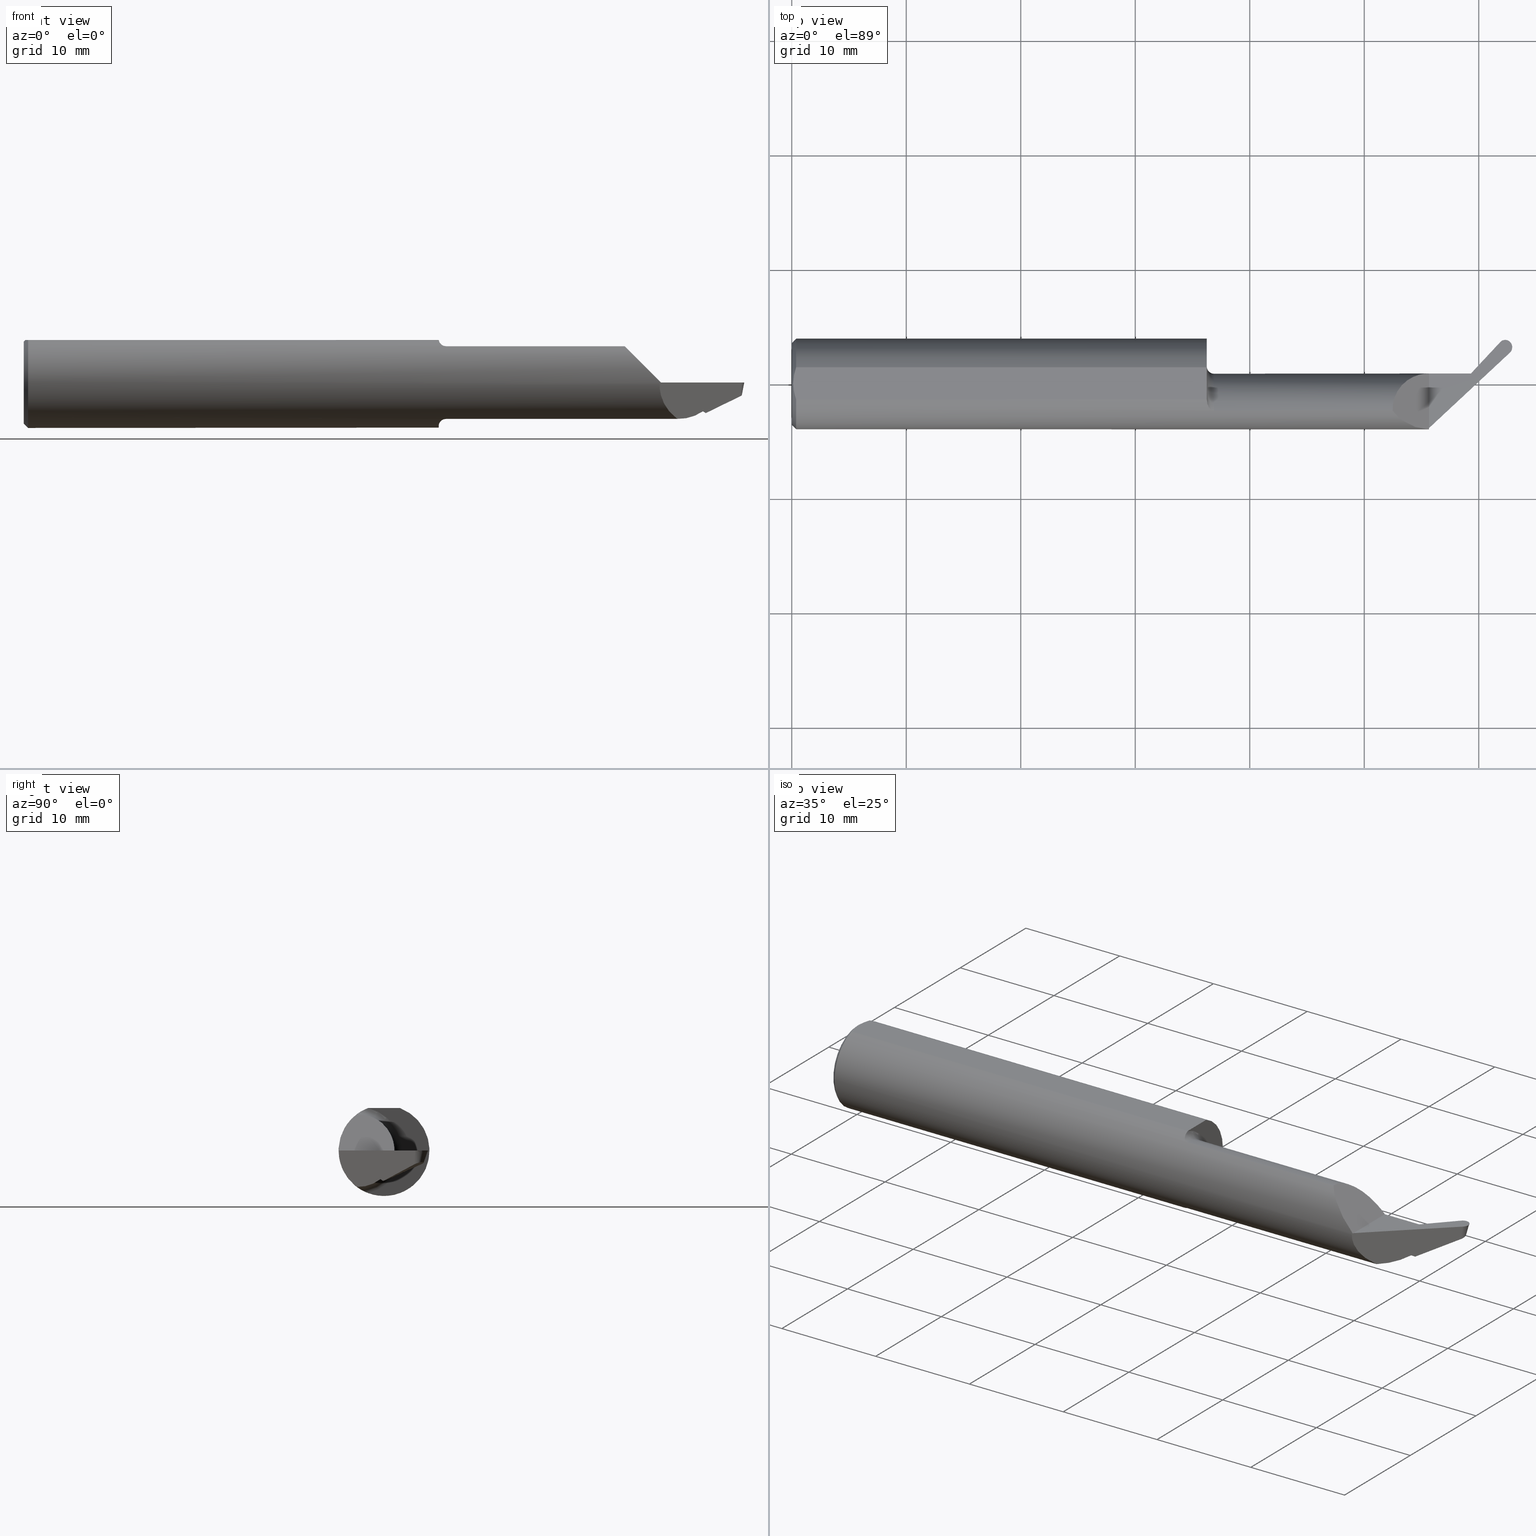
[diagram: canonical four-view strip — front | top / right | iso, engineering-drawing reading convention]
A machine part, canonical four-view strip (front | top / right | iso — engineering-drawing reading convention). The complete STEP part file that produces these views, byte-faithful:
ISO-10303-21;
HEADER;
FILE_DESCRIPTION (( 'STEP AP203' ),
    '1' );
FILE_NAME ('220263-UP31050-16.STEP',
    '2025-04-15T21:44:44',
    ( '' ),
    ( '' ),
    'SwSTEP 2.0',
    'SolidWorks 2024',
    '' );
FILE_SCHEMA (( 'CONFIG_CONTROL_DESIGN' ));
ENDSEC;

DATA;
#1 = AXIS2_PLACEMENT_3D ( 'NONE', #489, #660, #486 ) ;
#2 = CARTESIAN_POINT ( 'NONE',  ( 2.218639674596863731, -0.08910000000000001252, -4.748720145236707432E-17 ) ) ;
#3 = LOCAL_TIME ( 14, 44, 44.00000000000000000, #715 ) ;
#4 = DIRECTION ( 'NONE',  ( 0.6195281252448190390, 0.7068615321251650041, 0.3413673628692470707 ) ) ;
#5 = VERTEX_POINT ( 'NONE', #379 ) ;
#6 = DIRECTION ( 'NONE',  ( 0.000000000000000000, 1.000000000000000000, 0.000000000000000000 ) ) ;
#7 = CARTESIAN_POINT ( 'NONE',  ( 2.341910053109494072, -0.006189025616570364118, -0.1029650486948709004 ) ) ;
#8 = ORIENTED_EDGE ( 'NONE', *, *, #119, .T. ) ;
#9 = CARTESIAN_POINT ( 'NONE',  ( 2.474242186244780761, 0.1123115085268938940, -4.748720145236707432E-17 ) ) ;
#10 = DIRECTION ( 'NONE',  ( 0.7064334285460598384, -0.6587598294711700664, 0.2588190451025080274 ) ) ;
#11 = ORIENTED_EDGE ( 'NONE', *, *, #552, .F. ) ;
#12 = ADVANCED_FACE ( 'NONE', ( #266 ), #497, .T. ) ;
#13 = EDGE_CURVE ( 'NONE', #333, #600, #734, .T. ) ;
#14 = CARTESIAN_POINT ( 'NONE',  ( 2.474829513552956772, 0.1379922658341182773, -4.748720145236707432E-17 ) ) ;
#15 = CIRCLE ( 'NONE', #605, 0.1249999999999999861 ) ;
#16 = CARTESIAN_POINT ( 'NONE',  ( 2.335204060364074241, -0.01263723099847496520, -0.09888602002618680775 ) ) ;
#17 = EDGE_CURVE ( 'NONE', #577, #118, #425, .T. ) ;
#18 = LOCAL_TIME ( 14, 44, 44.00000000000000000, #34 ) ;
#19 = CC_DESIGN_APPROVAL ( #590, ( #43 ) ) ;
#20 = ORIENTED_EDGE ( 'NONE', *, *, #444, .F. ) ;
#21 = CARTESIAN_POINT ( 'NONE',  ( 2.467023715125999050, 0.1063236993262351437, -0.01589037952955454566 ) ) ;
#22 = CARTESIAN_POINT ( 'NONE',  ( 2.435924877925914611, 0.1439098532014193854, -4.748720145236707432E-17 ) ) ;
#23 = ORIENTED_EDGE ( 'NONE', *, *, #419, .T. ) ;
#24 = DIRECTION ( 'NONE',  ( 0.000000000000000000, 0.000000000000000000, 1.000000000000000000 ) ) ;
#25 = CARTESIAN_POINT ( 'NONE',  ( 2.463144267393613251, 0.1333658694173670278, -0.03952925762553193695 ) ) ;
#26 = ORIENTED_EDGE ( 'NONE', *, *, #444, .T. ) ;
#27 = CARTESIAN_POINT ( 'NONE',  ( 2.191000000000000281, 0.2000000000000000111, -4.748720145236707432E-17 ) ) ;
#28 = CARTESIAN_POINT ( 'NONE',  ( 2.470944162393588606, 0.1086190844687849599, 0.01260269782939965090 ) ) ;
#29 = FACE_OUTER_BOUND ( 'NONE', #399, .T. ) ;
#30 =( NAMED_UNIT ( * ) PLANE_ANGLE_UNIT ( ) SI_UNIT ( $, .RADIAN. ) );
#31 = CARTESIAN_POINT ( 'NONE',  ( 2.468540586185459240, 0.1248861926579711290, -0.04053824796227915861 ) ) ;
#32 = PRODUCT_RELATED_PRODUCT_CATEGORY ( 'detail', '', ( #257 ) ) ;
#33 = DIRECTION ( 'NONE',  ( 0.000000000000000000, 0.000000000000000000, 1.000000000000000000 ) ) ;
#34 = COORDINATED_UNIVERSAL_TIME_OFFSET ( 8, 0, .BEHIND. ) ;
#35 = CARTESIAN_POINT ( 'NONE',  ( 2.503309089435942880, 0.1400146228746874388, -0.01283820951682005350 ) ) ;
#36 = CARTESIAN_POINT ( 'NONE',  ( 3.393205798971804299, 1.619032468372981315, -0.7901417016499504564 ) ) ;
#37 = ADVANCED_FACE ( 'NONE', ( #670 ), #85, .F. ) ;
#38 = PERSON_AND_ORGANIZATION ( #107, #102 ) ;
#39 = ADVANCED_FACE ( 'NONE', ( #547 ), #99, .F. ) ;
#40 = CARTESIAN_POINT ( 'NONE',  ( 2.487422890083445193, 0.1271598593621031947, -0.05387347444383999706 ) ) ;
#41 = CARTESIAN_POINT ( 'NONE',  ( 2.247040128195683995, -0.09360841750841747411, -0.1249186702281519928 ) ) ;
#42 = AXIS2_PLACEMENT_3D ( 'NONE', #92, #667, #160 ) ;
#43 = SECURITY_CLASSIFICATION ( '', '', #664 ) ;
#44 = FACE_OUTER_BOUND ( 'NONE', #59, .T. ) ;
#45 = DIRECTION ( 'NONE',  ( 0.9684408309910902402, 0.000000000000000000, 0.2492435693639583894 ) ) ;
#46 = DIRECTION ( 'NONE',  ( 1.000000000000000000, -0.000000000000000000, -0.000000000000000000 ) ) ;
#47 = DIRECTION ( 'NONE',  ( -1.000000000000000000, -0.000000000000000000, -0.000000000000000000 ) ) ;
#48 = VERTEX_POINT ( 'NONE', #207 ) ;
#49 = PRODUCT_DEFINITION ( 'UNKNOWN', '', #701, #292 ) ;
#50 = CARTESIAN_POINT ( 'NONE',  ( 2.335204060364073353, 0.03590000000000036218, 1.707404996040164561E-15 ) ) ;
#51 = CARTESIAN_POINT ( 'NONE',  ( 1.433968222952011207, -0.08292257577194375728, 0.1323215906886383575 ) ) ;
#52 = VERTEX_POINT ( 'NONE', #607 ) ;
#53 = AXIS2_PLACEMENT_3D ( 'NONE', #108, #395, #342 ) ;
#54 = PLANE ( 'NONE',  #89 ) ;
#55 = CARTESIAN_POINT ( 'NONE',  ( 1.433963077135974817, -0.08291057444783019037, -0.1323284214741863307 ) ) ;
#56 = ORIENTED_EDGE ( 'NONE', *, *, #309, .F. ) ;
#57 = CARTESIAN_POINT ( 'NONE',  ( 2.596000278060403232, 0.2258375541594858649, 0.000000000000000000 ) ) ;
#58 = CARTESIAN_POINT ( 'NONE',  ( 1.451999999999999735, -0.08910000000000006803, 0.000000000000000000 ) ) ;
#59 = EDGE_LOOP ( 'NONE', ( #415, #8, #448, #639, #343 ) ) ;
#60 = CARTESIAN_POINT ( 'NONE',  ( 2.476849374532685832, 0.1335931695970355715, -4.748720145236707432E-17 ) ) ;
#61 = CARTESIAN_POINT ( 'NONE',  ( 2.471259001564823699, 0.1797074450171740612, -0.005328783383549354734 ) ) ;
#62 = ORIENTED_EDGE ( 'NONE', *, *, #648, .F. ) ;
#63 =( BOUNDED_CURVE ( )  B_SPLINE_CURVE ( 3, ( #169, #401, #631, #622 ),
 .UNSPECIFIED., .F., .T. ) 
 B_SPLINE_CURVE_WITH_KNOTS ( ( 4, 4 ),
 ( 1.487009272507281432, 2.181294901577356615 ),
 .UNSPECIFIED. ) 
 CURVE ( )  GEOMETRIC_REPRESENTATION_ITEM ( )  RATIONAL_B_SPLINE_CURVE ( ( 1.000000000000000000, 0.9602323999064841242, 0.9602323999064841242, 1.000000000000000000 ) ) 
 REPRESENTATION_ITEM ( '' )  );
#64 = AXIS2_PLACEMENT_3D ( 'NONE', #338, #180, #166 ) ;
#65 = CARTESIAN_POINT ( 'NONE',  ( 2.328126455961632146, 0.001896556112391220008, -0.08610141919949108880 ) ) ;
#66 = CARTESIAN_POINT ( 'NONE',  ( 2.436752079618845102, 0.1404640000770568664, -0.01102837136074725534 ) ) ;
#67 = ORIENTED_EDGE ( 'NONE', *, *, #421, .T. ) ;
#68 = CARTESIAN_POINT ( 'NONE',  ( 2.066081329771848996, -0.09360841750841744635, 0.1249186702281519790 ) ) ;
#69 = CARTESIAN_POINT ( 'NONE',  ( 1.426999999999999824, 0.03589999999999989727, -4.748720145236707432E-17 ) ) ;
#70 = ORIENTED_EDGE ( 'NONE', *, *, #367, .T. ) ;
#71 = ADVANCED_FACE ( 'NONE', ( #337 ), #437, .F. ) ;
#72 = ADVANCED_FACE ( 'NONE', ( #29 ), #263, .F. ) ;
#73 = CARTESIAN_POINT ( 'NONE',  ( 0.01499999999999970281, 0.05497272050753900657, 0.1460999999999999799 ) ) ;
#74 = CARTESIAN_POINT ( 'NONE',  ( 2.439398435432038603, 0.1294401427466415899, -0.04630996581122148736 ) ) ;
#75 = ORIENTED_EDGE ( 'NONE', *, *, #196, .F. ) ;
#76 = CARTESIAN_POINT ( 'NONE',  ( 2.462650905954093972, 0.1037634605271126192, -0.04767113858760475831 ) ) ;
#77 = AXIS2_PLACEMENT_3D ( 'NONE', #562, #103, #568 ) ;
#78 = LINE ( 'NONE', #131, #100 ) ;
#79 = ORIENTED_EDGE ( 'NONE', *, *, #573, .T. ) ;
#80 = CARTESIAN_POINT ( 'NONE',  ( 2.469210119712022422, 0.1076038187258366308, 0.000000000000000000 ) ) ;
#81 = LINE ( 'NONE', #603, #661 ) ;
#82 = ORIENTED_EDGE ( 'NONE', *, *, #93, .T. ) ;
#83 = PERSON_AND_ORGANIZATION_ROLE ( 'design_owner' ) ;
#84 = CARTESIAN_POINT ( 'NONE',  ( 2.463293037640891470, 0.1041394226132831974, -0.04300424560892504577 ) ) ;
#85 = PLANE ( 'NONE',  #42 ) ;
#86 = PERSON_AND_ORGANIZATION_ROLE ( 'creator' ) ;
#87 = CARTESIAN_POINT ( 'NONE',  ( 2.462148284351699967, 0.1034691802882231615, -0.05132409837045415202 ) ) ;
#88 = DIRECTION ( 'NONE',  ( 0.000000000000000000, -1.000000000000000000, 0.000000000000000000 ) ) ;
#89 = AXIS2_PLACEMENT_3D ( 'NONE', #57, #574, #161 ) ;
#90 =( NAMED_UNIT ( * ) SI_UNIT ( $, .STERADIAN. ) SOLID_ANGLE_UNIT ( ) );
#91 = CARTESIAN_POINT ( 'NONE',  ( 2.462678516128817829, 0.1037796260257201203, -0.04747047300262629416 ) ) ;
#92 = CARTESIAN_POINT ( 'NONE',  ( 1.551165436233184813, 0.2000000000000000111, -4.748720145236707432E-17 ) ) ;
#93 = EDGE_CURVE ( 'NONE', #295, #678, #453, .T. ) ;
#94 = EDGE_CURVE ( 'NONE', #612, #308, #15, .T. ) ;
#95 = EDGE_CURVE ( 'NONE', #678, #506, #201, .T. ) ;
#96 = CARTESIAN_POINT ( 'NONE',  ( 2.442934196066672392, 0.1332835353216043628, -0.04441363233550984363 ) ) ;
#97 = CARTESIAN_POINT ( 'NONE',  ( 0.01499999999999970281, 1.911673653469018068E-17, 0.1560999999999999888 ) ) ;
#98 = CARTESIAN_POINT ( 'NONE',  ( 0.01499999999999970281, 0.000000000000000000, 0.000000000000000000 ) ) ;
#99 = PLANE ( 'NONE',  #372 ) ;
#100 = VECTOR ( 'NONE', #361, 39.37007874015748854 ) ;
#101 = EDGE_LOOP ( 'NONE', ( #455, #527, #580, #126 ) ) ;
#102 = ORGANIZATION ( 'UNSPECIFIED', 'UNSPECIFIED', '' ) ;
#103 = DIRECTION ( 'NONE',  ( -0.000000000000000000, 0.000000000000000000, -1.000000000000000000 ) ) ;
#104 = CARTESIAN_POINT ( 'NONE',  ( 1.426999999999999824, -0.05502817059483734730, -0.1460791239054556601 ) ) ;
#105 = ORIENTED_EDGE ( 'NONE', *, *, #178, .T. ) ;
#106 = DIRECTION ( 'NONE',  ( -0.2261203733170208952, -0.2557405048339188025, 0.9399289180349030826 ) ) ;
#107 = PERSON ( 'UNSPECIFIED', 'UNSPECIFIED', 'UNSPECIFIED', ('UNSPECIFIED'), ('UNSPECIFIED'), ('UNSPECIFIED') ) ;
#108 = CARTESIAN_POINT ( 'NONE',  ( 2.189999999999999947, -0.6000000000000000888, 0.001000000000000040787 ) ) ;
#109 = VERTEX_POINT ( 'NONE', #387 ) ;
#110 = FACE_OUTER_BOUND ( 'NONE', #347, .T. ) ;
#111 = CC_DESIGN_DATE_AND_TIME_ASSIGNMENT ( #150, #512, ( #43 ) ) ;
#112 = CARTESIAN_POINT ( 'NONE',  ( 2.469210119712022422, 0.1076038187258366308, 0.000000000000000000 ) ) ;
#113 = ORIENTED_EDGE ( 'NONE', *, *, #496, .F. ) ;
#114 = CIRCLE ( 'NONE', #686, 0.1560999999999999888 ) ;
#115 = CC_DESIGN_APPROVAL ( #328, ( #701 ) ) ;
#116 = FACE_OUTER_BOUND ( 'NONE', #530, .T. ) ;
#117 = CARTESIAN_POINT ( 'NONE',  ( 1.436397142708820240, -0.08631844651567580073, 0.1301035823018546478 ) ) ;
#118 = VERTEX_POINT ( 'NONE', #501 ) ;
#119 = EDGE_CURVE ( 'NONE', #295, #402, #610, .T. ) ;
#120 = EDGE_CURVE ( 'NONE', #632, #600, #655, .T. ) ;
#121 = CARTESIAN_POINT ( 'NONE',  ( 2.472230964925945518, 0.1421255133808494442, -4.748720145236706816E-17 ) ) ;
#122 = CARTESIAN_POINT ( 'NONE',  ( 1.426999999999997826, -0.05933838711026702406, -0.1444554604868196757 ) ) ;
#123 = ORIENTED_EDGE ( 'NONE', *, *, #155, .T. ) ;
#124 = CARTESIAN_POINT ( 'NONE',  ( 2.323746707983512128, 0.03174157738134750911, -0.03310259354520850988 ) ) ;
#125 = CARTESIAN_POINT ( 'NONE',  ( 2.543514173780717869, 0.1981439991777866616, -0.002569372493512656411 ) ) ;
#126 = ORIENTED_EDGE ( 'NONE', *, *, #173, .T. ) ;
#127 = B_SPLINE_CURVE_WITH_KNOTS ( 'NONE', 3,
 ( #76, #538, #21, #80 ),
 .UNSPECIFIED., .F., .F.,
 ( 4, 4 ),
 ( 0.000000000000000000, 1.000000000000000000 ),
 .UNSPECIFIED. ) ;
#128 = VECTOR ( 'NONE', #228, 39.37007874015748143 ) ;
#129 = CARTESIAN_POINT ( 'NONE',  ( 0.000000000000000000, 0.000000000000000000, -0.1411000000000000310 ) ) ;
#130 = VECTOR ( 'NONE', #383, 39.37007874015748143 ) ;
#131 = CARTESIAN_POINT ( 'NONE',  ( 2.291994963155228771, -0.05139820251148209673, -0.1309744722033371334 ) ) ;
#132 = ORIENTED_EDGE ( 'NONE', *, *, #229, .F. ) ;
#133 =( BOUNDED_CURVE ( )  B_SPLINE_CURVE ( 3, ( #296, #695, #312, #68 ),
 .UNSPECIFIED., .F., .T. ) 
 B_SPLINE_CURVE_WITH_KNOTS ( ( 4, 4 ),
 ( 4.712388980384689674, 5.640097190903854418 ),
 .UNSPECIFIED. ) 
 CURVE ( )  GEOMETRIC_REPRESENTATION_ITEM ( )  RATIONAL_B_SPLINE_CURVE ( ( 1.000000000000000000, 0.9295565493311498395, 0.9295565493311498395, 1.000000000000000000 ) ) 
 REPRESENTATION_ITEM ( '' )  );
#134 = LINE ( 'NONE', #413, #247 ) ;
#135 = CARTESIAN_POINT ( 'NONE',  ( 2.345272296160326064, -0.002957592996309808733, -0.1049774889299558978 ) ) ;
#136 = VERTEX_POINT ( 'NONE', #435 ) ;
#137 = DIRECTION ( 'NONE',  ( -7.764387408964029902E-17, 1.000000000000000000, 0.000000000000000000 ) ) ;
#138 = CC_DESIGN_DATE_AND_TIME_ASSIGNMENT ( #202, #433, ( #49 ) ) ;
#139 = EDGE_LOOP ( 'NONE', ( #305, #329, #748, #26, #75 ) ) ;
#140 = DATE_AND_TIME ( #602, #18 ) ;
#141 = CARTESIAN_POINT ( 'NONE',  ( 2.437579281311977208, 0.1370181469524960061, -0.02205674272254689455 ) ) ;
#142 = EDGE_LOOP ( 'NONE', ( #742, #187, #472 ) ) ;
#143 = PRODUCT_DEFINITION_SHAPE ( 'NONE', 'NONE',  #49 ) ;
#144 = DIRECTION ( 'NONE',  ( -1.000000000000000000, -7.764387408964029902E-17, -0.000000000000000000 ) ) ;
#145 =( BOUNDED_CURVE ( )  B_SPLINE_CURVE ( 3, ( #641, #301, #307, #482 ),
 .UNSPECIFIED., .F., .T. ) 
 B_SPLINE_CURVE_WITH_KNOTS ( ( 4, 4 ),
 ( 2.691916191091909827, 2.767232025981809507 ),
 .UNSPECIFIED. ) 
 CURVE ( )  GEOMETRIC_REPRESENTATION_ITEM ( )  RATIONAL_B_SPLINE_CURVE ( ( 1.000000000000000000, 0.9995273496113951106, 0.9995273496113951106, 1.000000000000000000 ) ) 
 REPRESENTATION_ITEM ( '' )  );
#146 = VERTEX_POINT ( 'NONE', #658 ) ;
#147 = APPROVAL_STATUS ( 'not_yet_approved' ) ;
#148 = CARTESIAN_POINT ( 'NONE',  ( 2.467329155650641148, 0.1280702571202404494, -0.03996334796946490742 ) ) ;
#149 = CARTESIAN_POINT ( 'NONE',  ( 0.000000000000000000, 0.000000000000000000, 0.000000000000000000 ) ) ;
#150 = DATE_AND_TIME ( #205, #583 ) ;
#151 = LINE ( 'NONE', #393, #199 ) ;
#152 = EDGE_CURVE ( 'NONE', #678, #295, #234, .T. ) ;
#153 = DIRECTION ( 'NONE',  ( -1.000000000000000000, -0.000000000000000000, -0.000000000000000000 ) ) ;
#154 = AXIS2_PLACEMENT_3D ( 'NONE', #471, #10, #645 ) ;
#155 = EDGE_CURVE ( 'NONE', #136, #291, #313, .T. ) ;
#156 =( CONVERSION_BASED_UNIT ( 'INCH', #317 ) LENGTH_UNIT ( ) NAMED_UNIT ( #723 ) );
#157 = CARTESIAN_POINT ( 'NONE',  ( 2.462668055062093853, 0.1488568087960829567, -0.06040289146585826191 ) ) ;
#158 = DIRECTION ( 'NONE',  ( 0.6819983600625044717, 0.7313537016191651308, 0.000000000000000000 ) ) ;
#159 = CARTESIAN_POINT ( 'NONE',  ( 2.461896973550503187, 0.1033220401687785783, -0.05315057826187826601 ) ) ;
#160 = DIRECTION ( 'NONE',  ( -1.000000000000000000, 0.000000000000000000, 0.000000000000000000 ) ) ;
#161 = DIRECTION ( 'NONE',  ( -1.000000000000000000, 0.000000000000000000, 0.000000000000000000 ) ) ;
#162 = CARTESIAN_POINT ( 'NONE',  ( 0.000000000000000000, 1.819825143532966781E-17, 0.1411000000000000310 ) ) ;
#163 = VECTOR ( 'NONE', #427, 39.37007874015748143 ) ;
#164 = EDGE_LOOP ( 'NONE', ( #181, #584, #466, #220, #366, #710 ) ) ;
#165 = CARTESIAN_POINT ( 'NONE',  ( 0.01499999999999970281, 0.000000000000000000, 0.000000000000000000 ) ) ;
#166 = DIRECTION ( 'NONE',  ( 0.000000000000000000, -1.000000000000000000, 0.000000000000000000 ) ) ;
#167 = VERTEX_POINT ( 'NONE', #510 ) ;
#168 = LINE ( 'NONE', #293, #465 ) ;
#169 = CARTESIAN_POINT ( 'NONE',  ( 2.247040128195683995, -0.09360841750841747411, -0.1249186702281519928 ) ) ;
#170 = EDGE_LOOP ( 'NONE', ( #280, #516, #354, #284 ) ) ;
#171 = APPROVAL_STATUS ( 'not_yet_approved' ) ;
#172 = CARTESIAN_POINT ( 'NONE',  ( 0.01499999999999970281, 0.000000000000000000, -0.1560999999999999888 ) ) ;
#173 = EDGE_CURVE ( 'NONE', #612, #479, #744, .T. ) ;
#174 = CARTESIAN_POINT ( 'NONE',  ( 1.426999999999999824, 0.000000000000000000, 0.000000000000000000 ) ) ;
#175 = EDGE_CURVE ( 'NONE', #136, #5, #626, .T. ) ;
#176 = ORIENTED_EDGE ( 'NONE', *, *, #175, .T. ) ;
#177 = CLOSED_SHELL ( 'NONE', ( #463, #388, #575, #289, #72, #12, #440, #251, #37, #39, #517, #521, #707, #442, #494, #332, #71, #554 ) ) ;
#178 = EDGE_CURVE ( 'NONE', #190, #600, #350, .T. ) ;
#179 = CARTESIAN_POINT ( 'NONE',  ( 2.473176943833145902, 0.1408111254755286812, -4.748720145236708048E-17 ) ) ;
#180 = DIRECTION ( 'NONE',  ( -1.000000000000000000, -7.764387408964029902E-17, -0.000000000000000000 ) ) ;
#181 = ORIENTED_EDGE ( 'NONE', *, *, #646, .T. ) ;
#182 = DIRECTION ( 'NONE',  ( 1.000000000000000000, 7.764387408964029902E-17, 0.000000000000000000 ) ) ;
#183 = CARTESIAN_POINT ( 'NONE',  ( 2.437082730427955646, 0.1390866163831598334, -0.01543665527040917300 ) ) ;
#184 = VERTEX_POINT ( 'NONE', #222 ) ;
#185 = CARTESIAN_POINT ( 'NONE',  ( 2.325542287366606953, 0.007625947997758561643, -0.07965069524893227115 ) ) ;
#186 = CARTESIAN_POINT ( 'NONE',  ( 2.439406034131053946, 0.1294084890387650622, -0.04641127275403300612 ) ) ;
#187 = ORIENTED_EDGE ( 'NONE', *, *, #178, .F. ) ;
#188 = CARTESIAN_POINT ( 'NONE',  ( 2.435924877925914611, 0.1439098532014193854, -4.748720145236707432E-17 ) ) ;
#189 = CARTESIAN_POINT ( 'NONE',  ( 2.469840325137586223, 0.1746128875829318083, -0.01442351338368593437 ) ) ;
#190 = VERTEX_POINT ( 'NONE', #677 ) ;
#191 = PLANE ( 'NONE',  #537 ) ;
#192 = CARTESIAN_POINT ( 'NONE',  ( 2.471519333277033770, 0.1806423127814166529, -0.003659871017387745194 ) ) ;
#193 = ORIENTED_EDGE ( 'NONE', *, *, #95, .T. ) ;
#194 = APPROVAL_ROLE ( '' ) ;
#195 = DIRECTION ( 'NONE',  ( 1.000000000000000000, 7.764387408964029902E-17, 0.000000000000000000 ) ) ;
#196 = EDGE_CURVE ( 'NONE', #184, #571, #684, .T. ) ;
#197 = ORIENTED_EDGE ( 'NONE', *, *, #225, .T. ) ;
#198 = PERSON_AND_ORGANIZATION ( #107, #102 ) ;
#199 = VECTOR ( 'NONE', #565, 39.37007874015748143 ) ;
#200 = CARTESIAN_POINT ( 'NONE',  ( 2.470441540791193269, 0.1083248042298945724, 0.008949738046544584644 ) ) ;
#201 = LINE ( 'NONE', #718, #727 ) ;
#202 = DATE_AND_TIME ( #711, #359 ) ;
#203 = CARTESIAN_POINT ( 'NONE',  ( 2.457625600640624075, 0.1367284959629543606, -0.03994197306455948837 ) ) ;
#204 = DIRECTION ( 'NONE',  ( -1.000000000000000000, -0.000000000000000000, -0.000000000000000000 ) ) ;
#205 = CALENDAR_DATE ( 2025, 15, 4 ) ;
#206 = CARTESIAN_POINT ( 'NONE',  ( 2.494303417906667431, 0.1327274313187125077, -0.03610054614217160507 ) ) ;
#207 = CARTESIAN_POINT ( 'NONE',  ( 2.066081329771848996, -0.09360841750841744635, 0.1249186702281519790 ) ) ;
#208 = CARTESIAN_POINT ( 'NONE',  ( 2.347478530868236213, 0.003589846238792815652, -0.1026652714958163903 ) ) ;
#209 = AXIS2_PLACEMENT_3D ( 'NONE', #559, #153, #33 ) ;
#210 = CARTESIAN_POINT ( 'NONE',  ( 2.462650905954093972, 0.1037634605271126192, -0.04767113858760475831 ) ) ;
#211 = CC_DESIGN_SECURITY_CLASSIFICATION ( #43, ( #701 ) ) ;
#212 = CC_DESIGN_PERSON_AND_ORGANIZATION_ASSIGNMENT ( #198, #649, ( #49 ) ) ;
#213 = CARTESIAN_POINT ( 'NONE',  ( 2.448654902360495100, 0.1360194484678816651, -0.04229299106811073433 ) ) ;
#214 = CARTESIAN_POINT ( 'NONE',  ( 2.467018834880121858, 0.1088782367069954515, -0.04523061440462058241 ) ) ;
#215 = CARTESIAN_POINT ( 'NONE',  ( 0.004999999999997738025, -0.009421212120332620593, 0.1460999999999999521 ) ) ;
#216 = CARTESIAN_POINT ( 'NONE',  ( 1.426999999999999824, -0.05502817059483734730, 0.1460791239054556601 ) ) ;
#217 = FACE_OUTER_BOUND ( 'NONE', #139, .T. ) ;
#218 = CARTESIAN_POINT ( 'NONE',  ( 1.427000000000000046, -0.05936499800629328055, 0.1444454361322977665 ) ) ;
#219 = TOROIDAL_SURFACE ( 'NONE', #394, 0.1499999999999999389, 0.02499999999999993894 ) ;
#220 = ORIENTED_EDGE ( 'NONE', *, *, #173, .F. ) ;
#221 = DIRECTION ( 'NONE',  ( 7.764387408964029902E-17, -1.000000000000000000, 0.000000000000000000 ) ) ;
#222 = CARTESIAN_POINT ( 'NONE',  ( 1.426999999999999824, -0.05497272050753915923, 0.1460999999999999799 ) ) ;
#223 = B_SPLINE_CURVE_WITH_KNOTS ( 'NONE', 3,
 ( #345, #294, #733, #570, #55, #290, #404, #628, #122, #104 ),
 .UNSPECIFIED., .F., .F.,
 ( 4, 2, 2, 2, 4 ),
 ( 1.958690481381664333E-07, 0.0003511029445248164873, 0.0007020100200014948002, 0.001052917095478172896, 0.001403824170954851317 ),
 .UNSPECIFIED. ) ;
#224 = ORIENTED_EDGE ( 'NONE', *, *, #227, .T. ) ;
#225 = EDGE_CURVE ( 'NONE', #5, #409, #429, .T. ) ;
#226 = CARTESIAN_POINT ( 'NONE',  ( 0.009389923699173040317, -0.03718686308286630465, 0.1460999999999999799 ) ) ;
#227 = EDGE_CURVE ( 'NONE', #506, #146, #596, .T. ) ;
#228 = DIRECTION ( 'NONE',  ( 0.6819983600625071363, 0.5357604036067474818, -0.4978343367016642707 ) ) ;
#229 = EDGE_CURVE ( 'NONE', #291, #109, #652, .T. ) ;
#230 = ORIENTED_EDGE ( 'NONE', *, *, #17, .T. ) ;
#231 = PLANE ( 'NONE',  #614 ) ;
#232 = CARTESIAN_POINT ( 'NONE',  ( 1.442961110143899273, -0.09166971356555045358, 0.1263901893006928456 ) ) ;
#233 = ORIENTED_EDGE ( 'NONE', *, *, #648, .T. ) ;
#234 = CIRCLE ( 'NONE', #509, 0.1411000000000000310 ) ;
#235 = CIRCLE ( 'NONE', #653, 2.000000000000000444 ) ;
#236 = DIRECTION ( 'NONE',  ( 0.6819983600625070252, 0.7313537016191623552, 0.000000000000000000 ) ) ;
#237 = CARTESIAN_POINT ( 'NONE',  ( 2.463217319740535149, 0.1508292532499493910, -0.05688171225057014196 ) ) ;
#238 = ORIENTED_EDGE ( 'NONE', *, *, #572, .T. ) ;
#239 = CARTESIAN_POINT ( 'NONE',  ( 2.335204060364074241, 0.002469989052606497409, -0.08508781995625532002 ) ) ;
#240 = CARTESIAN_POINT ( 'NONE',  ( 2.435133052272078658, 0.1472083412561765448, 0.01055673294379022749 ) ) ;
#241 = VERTEX_POINT ( 'NONE', #112 ) ;
#242 = CARTESIAN_POINT ( 'NONE',  ( 2.191000000000000281, -0.1560999999999999888, 0.000000000000000000 ) ) ;
#243 = CARTESIAN_POINT ( 'NONE',  ( 2.439067784623036861, 0.1308175264404445037, -0.04190168190209483251 ) ) ;
#244 = ORIENTED_EDGE ( 'NONE', *, *, #94, .T. ) ;
#245 = CC_DESIGN_PERSON_AND_ORGANIZATION_ASSIGNMENT ( #38, #86, ( #701 ) ) ;
#246 = CIRCLE ( 'NONE', #487, 0.1560999999999999888 ) ;
#247 = VECTOR ( 'NONE', #636, 39.37007874015748143 ) ;
#248 = CARTESIAN_POINT ( 'NONE',  ( 1.426999999999999824, 0.1000000000000001166, 0.1460999999999999799 ) ) ;
#249 = EDGE_LOOP ( 'NONE', ( #635, #351, #738, #587, #613 ) ) ;
#250 = CARTESIAN_POINT ( 'NONE',  ( 2.469210119712022422, 0.1076038187258366308, 0.000000000000000000 ) ) ;
#251 = ADVANCED_FACE ( 'NONE', ( #737 ), #454, .F. ) ;
#252 = PLANE ( 'NONE',  #154 ) ;
#253 = EDGE_CURVE ( 'NONE', #333, #308, #63, .T. ) ;
#254 = ORIENTED_EDGE ( 'NONE', *, *, #625, .T. ) ;
#255 = APPROVAL_DATE_TIME ( #720, #270 ) ;
#256 = CARTESIAN_POINT ( 'NONE',  ( 2.498127113979784930, 0.1358214821780732717, -0.02622364746755166329 ) ) ;
#257 = PRODUCT ( '220263-UP31050-16', '220263-UP31050-16', '', ( #608 ) ) ;
#258 = ORIENTED_EDGE ( 'NONE', *, *, #253, .F. ) ;
#259 = APPROVAL_ROLE ( '' ) ;
#260 = AXIS2_PLACEMENT_3D ( 'NONE', #322, #604, #45 ) ;
#261 = CARTESIAN_POINT ( 'NONE',  ( 2.447298815780561299, 0.1355465718368921435, -0.04274788984166048855 ) ) ;
#262 = CC_DESIGN_APPROVAL ( #270, ( #49 ) ) ;
#263 = PLANE ( 'NONE',  #260 ) ;
#264 = PERSON_AND_ORGANIZATION_ROLE ( 'classification_officer' ) ;
#265 = CARTESIAN_POINT ( 'NONE',  ( 2.469780768848910846, 0.1203811070523916199, -0.04146566096503292997 ) ) ;
#266 = FACE_OUTER_BOUND ( 'NONE', #564, .T. ) ;
#267 = ORIENTED_EDGE ( 'NONE', *, *, #623, .T. ) ;
#268 = CARTESIAN_POINT ( 'NONE',  ( 2.502302170549015603, 0.1391998462324078312, -0.01543915782202287881 ) ) ;
#269 = CARTESIAN_POINT ( 'NONE',  ( 2.335204060364074241, -0.08909999999999999865, 0.000000000000000000 ) ) ;
#270 = APPROVAL ( #557, 'UNSPECIFIED' ) ;
#271 = PERSON_AND_ORGANIZATION_ROLE ( 'design_supplier' ) ;
#272 = CARTESIAN_POINT ( 'NONE',  ( 2.462407723349915312, 0.1479219410317793859, -0.06207180383197414414 ) ) ;
#273 = CARTESIAN_POINT ( 'NONE',  ( 0.000000000000000000, 0.000000000000000000, 0.000000000000000000 ) ) ;
#274 = AXIS2_PLACEMENT_3D ( 'NONE', #426, #24, #493 ) ;
#275 = COORDINATED_UNIVERSAL_TIME_OFFSET ( 8, 0, .BEHIND. ) ;
#276 = CARTESIAN_POINT ( 'NONE',  ( 2.066081329771848996, -0.09360841750841744635, 0.1249186702281519790 ) ) ;
#277 = DIRECTION ( 'NONE',  ( -1.000000000000000000, -7.764387408964029902E-17, -0.000000000000000000 ) ) ;
#278 = DIRECTION ( 'NONE',  ( 0.000000000000000000, 0.000000000000000000, -1.000000000000000000 ) ) ;
#279 = DIRECTION ( 'NONE',  ( 0.000000000000000000, 1.000000000000000000, 0.000000000000000000 ) ) ;
#280 = ORIENTED_EDGE ( 'NONE', *, *, #492, .F. ) ;
#281 = FACE_OUTER_BOUND ( 'NONE', #142, .T. ) ;
#282 = CARTESIAN_POINT ( 'NONE',  ( 1.447302566751078601, -0.09360841750841744635, 0.1249186702281520484 ) ) ;
#283 = VECTOR ( 'NONE', #204, 39.37007874015748143 ) ;
#284 = ORIENTED_EDGE ( 'NONE', *, *, #730, .T. ) ;
#285 =( GEOMETRIC_REPRESENTATION_CONTEXT ( 3 ) GLOBAL_UNCERTAINTY_ASSIGNED_CONTEXT ( ( #691 ) ) GLOBAL_UNIT_ASSIGNED_CONTEXT ( ( #156, #30, #90 ) ) REPRESENTATION_CONTEXT ( 'NONE', 'WORKASPACE' ) );
#286 = EDGE_CURVE ( 'NONE', #109, #5, #223, .T. ) ;
#287 = PERSON_AND_ORGANIZATION ( #107, #102 ) ;
#288 = CARTESIAN_POINT ( 'NONE',  ( 0.004999999999999809285, 1.568771489523154700E-17, 0.1460999999999999799 ) ) ;
#289 = ADVANCED_FACE ( 'NONE', ( #353 ), #616, .T. ) ;
#290 = CARTESIAN_POINT ( 'NONE',  ( 1.430298581922915480, -0.07564908586346476282, -0.1366096273808738992 ) ) ;
#291 = VERTEX_POINT ( 'NONE', #673 ) ;
#292 = DESIGN_CONTEXT ( 'detailed design', #663, 'design' ) ;
#293 = CARTESIAN_POINT ( 'NONE',  ( 2.422925986548072341, 0.06765131554262537872, -0.06718900691150708759 ) ) ;
#294 = CARTESIAN_POINT ( 'NONE',  ( 1.447298065053172600, -0.09360841750841741860, -0.1249186702281520345 ) ) ;
#295 = VERTEX_POINT ( 'NONE', #162 ) ;
#296 = CARTESIAN_POINT ( 'NONE',  ( 2.191000000000000281, -0.1560999999999999888, 0.000000000000000000 ) ) ;
#297 = CARTESIAN_POINT ( 'NONE',  ( 2.463853899770740874, 0.1531152526948444392, -0.05280077921517179612 ) ) ;
#298 = ORIENTED_EDGE ( 'NONE', *, *, #175, .F. ) ;
#299 = VECTOR ( 'NONE', #47, 39.37007874015748143 ) ;
#300 = CARTESIAN_POINT ( 'NONE',  ( 2.468184064757231955, 0.1121947837834815498, -0.04407715820031712223 ) ) ;
#301 = CARTESIAN_POINT ( 'NONE',  ( 2.332794648486069988, -0.001888384406420577644, -0.08960461377418882378 ) ) ;
#302 = ORIENTED_EDGE ( 'NONE', *, *, #13, .F. ) ;
#303 = CARTESIAN_POINT ( 'NONE',  ( 2.335204060364073353, 0.03590000000000036218, 1.707404996040164561E-15 ) ) ;
#304 = CARTESIAN_POINT ( 'NONE',  ( 2.338553550332264308, -0.009415917154835680078, -0.1009356065419781262 ) ) ;
#305 = ORIENTED_EDGE ( 'NONE', *, *, #368, .F. ) ;
#306 = CARTESIAN_POINT ( 'NONE',  ( 2.440804894978326089, 0.1491262653164801555, -4.748720145236707432E-17 ) ) ;
#307 = CARTESIAN_POINT ( 'NONE',  ( 2.334054047474920957, 0.0003333306112328325316, -0.08738725353188379896 ) ) ;
#308 = VERTEX_POINT ( 'NONE', #637 ) ;
#309 = EDGE_CURVE ( 'NONE', #647, #745, #78, .T. ) ;
#310 = AXIS2_PLACEMENT_3D ( 'NONE', #36, #382, #158 ) ;
#311 = EDGE_CURVE ( 'NONE', #647, #577, #634, .T. ) ;
#312 = CARTESIAN_POINT ( 'NONE',  ( 2.096117332916550779, -0.1336908980339253927, 0.09488266708345011180 ) ) ;
#313 = B_SPLINE_CURVE_WITH_KNOTS ( 'NONE', 3,
 ( #216, #218, #398, #747, #505, #51, #117, #232, #282, #515 ),
 .UNSPECIFIED., .F., .F.,
 ( 4, 2, 2, 2, 4 ),
 ( 2.042507625486400998E-06, 0.0003500235523914669114, 0.0006980045971574474128, 0.001045985641923427968, 0.001393966686689408416 ),
 .UNSPECIFIED. ) ;
#314 = CARTESIAN_POINT ( 'NONE',  ( 2.469911851612799136, 0.1748697437123946929, -0.01396497754884084251 ) ) ;
#315 = EDGE_CURVE ( 'NONE', #412, #167, #551, .T. ) ;
#316 = ORIENTED_EDGE ( 'NONE', *, *, #597, .T. ) ;
#317 = LENGTH_MEASURE_WITH_UNIT ( LENGTH_MEASURE( 0.02539999999999999897 ), #330 );
#318 = CARTESIAN_POINT ( 'NONE',  ( 2.445927996781697811, 0.1349847931549641167, -0.04323052172880663402 ) ) ;
#319 = VERTEX_POINT ( 'NONE', #586 ) ;
#320 = PERSON_AND_ORGANIZATION ( #107, #102 ) ;
#321 = CARTESIAN_POINT ( 'NONE',  ( 2.462399595152897636, 0.1036163204076684108, -0.04949761847902903189 ) ) ;
#322 = CARTESIAN_POINT ( 'NONE',  ( 1.220060363786830360, 1.376160363786818053, -0.04000000000000000083 ) ) ;
#323 = COORDINATED_UNIVERSAL_TIME_OFFSET ( 8, 0, .BEHIND. ) ;
#324 = AXIS2_PLACEMENT_3D ( 'NONE', #456, #576, #464 ) ;
#325 = CARTESIAN_POINT ( 'NONE',  ( 2.345272296160326064, -0.002957592996309808733, -0.1049774889299558978 ) ) ;
#326 = CARTESIAN_POINT ( 'NONE',  ( 2.500000000000000000, -0.1560999999999999888, 0.000000000000000000 ) ) ;
#327 = CARTESIAN_POINT ( 'NONE',  ( 2.505610982254345753, 0.1418772639731947505, -0.006892244749178227763 ) ) ;
#328 = APPROVAL ( #147, 'UNSPECIFIED' ) ;
#329 = ORIENTED_EDGE ( 'NONE', *, *, #625, .F. ) ;
#330 =( LENGTH_UNIT ( ) NAMED_UNIT ( * ) SI_UNIT ( $, .METRE. ) );
#331 = CARTESIAN_POINT ( 'NONE',  ( 2.448232197679709454, 0.1358839061097146250, -0.04243156092039118005 ) ) ;
#332 = ADVANCED_FACE ( 'NONE', ( #708 ), #252, .F. ) ;
#333 = VERTEX_POINT ( 'NONE', #589 ) ;
#334 = EDGE_CURVE ( 'NONE', #319, #612, #145, .T. ) ;
#335 = CARTESIAN_POINT ( 'NONE',  ( 2.191000000000000281, 0.03589999999999998748, -4.748720145236707432E-17 ) ) ;
#336 = AXIS2_PLACEMENT_3D ( 'NONE', #174, #741, #279 ) ;
#337 = FACE_OUTER_BOUND ( 'NONE', #617, .T. ) ;
#338 = CARTESIAN_POINT ( 'NONE',  ( 1.426999999999999824, -0.08910000000000006803, 0.000000000000000000 ) ) ;
#339 = ORIENTED_EDGE ( 'NONE', *, *, #229, .T. ) ;
#340 = DATE_AND_TIME ( #445, #348 ) ;
#341 = DIRECTION ( 'NONE',  ( 0.000000000000000000, -0.9649209822802699010, -0.2625404691762378007 ) ) ;
#342 = DIRECTION ( 'NONE',  ( -0.7071067811865451302, 0.000000000000000000, 0.7071067811865499042 ) ) ;
#343 = ORIENTED_EDGE ( 'NONE', *, *, #95, .F. ) ;
#344 = CARTESIAN_POINT ( 'NONE',  ( 1.426999999999999824, 0.000000000000000000, 0.000000000000000000 ) ) ;
#345 = CARTESIAN_POINT ( 'NONE',  ( 1.451999999999999735, -0.09360841750841747411, -0.1249186702281519512 ) ) ;
#346 = CONICAL_SURFACE ( 'NONE', #548, 0.1560999999999999888, 0.7853981633974562726 ) ;
#347 = EDGE_LOOP ( 'NONE', ( #11, #685, #238, #105, #302, #424, #70, #56 ) ) ;
#348 = LOCAL_TIME ( 14, 44, 44.00000000000000000, #275 ) ;
#349 = CARTESIAN_POINT ( 'NONE',  ( 0.01499999999999970281, 0.000000000000000000, 0.000000000000000000 ) ) ;
#350 = LINE ( 'NONE', #460, #700 ) ;
#351 = ORIENTED_EDGE ( 'NONE', *, *, #17, .F. ) ;
#352 = CARTESIAN_POINT ( 'NONE',  ( 2.186422395796417728, -0.1561000000000001831, 1.397937840507884809E-16 ) ) ;
#353 = FACE_OUTER_BOUND ( 'NONE', #420, .T. ) ;
#354 = ORIENTED_EDGE ( 'NONE', *, *, #668, .T. ) ;
#355 = CARTESIAN_POINT ( 'NONE',  ( 2.322350948754541289, 0.02912653887757216120, -0.04153261417263075933 ) ) ;
#356 = CARTESIAN_POINT ( 'NONE',  ( 2.435848866131937296, 0.1442264936048205382, 0.001013400116181893337 ) ) ;
#357 = ORIENTED_EDGE ( 'NONE', *, *, #519, .F. ) ;
#358 = CONICAL_SURFACE ( 'NONE', #638, 0.1249999999999999861, 0.8203047484373231502 ) ;
#359 = LOCAL_TIME ( 14, 44, 44.00000000000000000, #484 ) ;
#360 = DIRECTION ( 'NONE',  ( 1.000000000000000000, 0.000000000000000000, 0.000000000000000000 ) ) ;
#361 = DIRECTION ( 'NONE',  ( -0.6959269503777310018, -0.6327479953080068498, -0.3395815869149114707 ) ) ;
#362 = ORIENTED_EDGE ( 'NONE', *, *, #155, .F. ) ;
#363 = DIRECTION ( 'NONE',  ( -0.6819983600625044717, -0.7313537016191651308, 0.000000000000000000 ) ) ;
#364 = CARTESIAN_POINT ( 'NONE',  ( 2.435451207168473076, 0.1458830114690533031, 0.006315046330688811778 ) ) ;
#365 = EDGE_CURVE ( 'NONE', #52, #533, #582, .T. ) ;
#366 = ORIENTED_EDGE ( 'NONE', *, *, #334, .F. ) ;
#367 = EDGE_CURVE ( 'NONE', #308, #745, #594, .T. ) ;
#368 = EDGE_CURVE ( 'NONE', #409, #184, #411, .T. ) ;
#369 = LINE ( 'NONE', #27, #130 ) ;
#370 = CARTESIAN_POINT ( 'NONE',  ( 2.471779664989238956, 0.1815771805457267185, -0.001990958651282649476 ) ) ;
#371 = ORIENTED_EDGE ( 'NONE', *, *, #225, .F. ) ;
#372 = AXIS2_PLACEMENT_3D ( 'NONE', #273, #556, #385 ) ;
#373 = PERSON_AND_ORGANIZATION ( #107, #102 ) ;
#374 = CARTESIAN_POINT ( 'NONE',  ( 2.439559559892214846, 0.1287689506671038653, -0.04845810017460854685 ) ) ;
#375 = ADVANCED_BREP_SHAPE_REPRESENTATION ( '220263-UP31050-16', ( #735, #274 ), #285 ) ;
#376 = ORIENTED_EDGE ( 'NONE', *, *, #286, .T. ) ;
#377 = APPLICATION_PROTOCOL_DEFINITION ( 'international standard', 'config_control_design', 1994, #459 ) ;
#378 = CARTESIAN_POINT ( 'NONE',  ( 2.439398435432038603, 0.1294401427466415899, -0.04630996581122148736 ) ) ;
#379 = CARTESIAN_POINT ( 'NONE',  ( 1.426999999999999824, -0.05502817059483734730, -0.1460791239054556601 ) ) ;
#380 = CARTESIAN_POINT ( 'NONE',  ( 2.345272296160326064, -0.002957592996309808733, -0.1049774889299558978 ) ) ;
#381 = CARTESIAN_POINT ( 'NONE',  ( 1.426999999999999824, 0.05497272050753900657, 0.1460999999999999799 ) ) ;
#382 = DIRECTION ( 'NONE',  ( 0.7064334285460631691, -0.6587598294711664026, 0.2588190451025078609 ) ) ;
#383 = DIRECTION ( 'NONE',  ( 0.000000000000000000, 1.000000000000000000, 0.000000000000000000 ) ) ;
#384 = CARTESIAN_POINT ( 'NONE',  ( 2.504140328074161648, 0.1406872429193190832, -0.01069105669671182972 ) ) ;
#385 = DIRECTION ( 'NONE',  ( 0.000000000000000000, 0.000000000000000000, -1.000000000000000000 ) ) ;
#386 = CARTESIAN_POINT ( 'NONE',  ( 2.435924877925914611, 0.1439098532014193854, -4.748720145236707432E-17 ) ) ;
#387 = CARTESIAN_POINT ( 'NONE',  ( 1.451999999999999735, -0.09360841750841747411, -0.1249186702281519512 ) ) ;
#388 = ADVANCED_FACE ( 'NONE', ( #650 ), #719, .T. ) ;
#389 = EDGE_CURVE ( 'NONE', #333, #109, #81, .T. ) ;
#390 = EDGE_CURVE ( 'NONE', #745, #479, #513, .T. ) ;
#391 = CARTESIAN_POINT ( 'NONE',  ( 2.115664766370900729, 0.03589999999999993197, 0.07533523362909981536 ) ) ;
#392 = CARTESIAN_POINT ( 'NONE',  ( 2.465174448372368765, 0.1060677958352008177, -0.04642860787383867177 ) ) ;
#393 = CARTESIAN_POINT ( 'NONE',  ( 1.893602030182037099, -0.09360841750841751574, 0.1249186702281519928 ) ) ;
#394 = AXIS2_PLACEMENT_3D ( 'NONE', #462, #736, #221 ) ;
#395 = DIRECTION ( 'NONE',  ( -0.7071067811865499042, 0.000000000000000000, -0.7071067811865451302 ) ) ;
#396 = EDGE_LOOP ( 'NONE', ( #197, #461, #79, #176 ) ) ;
#397 = CARTESIAN_POINT ( 'NONE',  ( 0.01499999999999970281, -0.05497272050753900657, 0.1460999999999999799 ) ) ;
#398 = CARTESIAN_POINT ( 'NONE',  ( 1.427388004276692879, -0.06355822688702697509, 0.1426455942582920688 ) ) ;
#399 = EDGE_LOOP ( 'NONE', ( #428, #230, #671 ) ) ;
#400 = FACE_OUTER_BOUND ( 'NONE', #690, .T. ) ;
#401 = CARTESIAN_POINT ( 'NONE',  ( 2.278626883863794195, -0.06410244459253963689, -0.1259835650485489067 ) ) ;
#402 = VERTEX_POINT ( 'NONE', #666 ) ;
#403 = DIRECTION ( 'NONE',  ( -0.7313537016191657969, -0.6819983600625033615, 0.000000000000000000 ) ) ;
#404 = CARTESIAN_POINT ( 'NONE',  ( 1.429026367118634511, -0.07167964287766666331, -0.1387431844349195365 ) ) ;
#405 = AXIS2_PLACEMENT_3D ( 'NONE', #579, #277, #503 ) ;
#406 = EDGE_LOOP ( 'NONE', ( #624, #82 ) ) ;
#407 = DIRECTION ( 'NONE',  ( 0.000000000000000000, 1.000000000000000000, 0.000000000000000000 ) ) ;
#408 = CARTESIAN_POINT ( 'NONE',  ( 2.500000000000000000, -0.05497272050753900657, 0.1460999999999999799 ) ) ;
#409 = VERTEX_POINT ( 'NONE', #381 ) ;
#410 = CARTESIAN_POINT ( 'NONE',  ( 2.500000000000000000, 0.05497272050753900657, 0.1460999999999999799 ) ) ;
#411 = LINE ( 'NONE', #248, #163 ) ;
#412 = VERTEX_POINT ( 'NONE', #386 ) ;
#413 = CARTESIAN_POINT ( 'NONE',  ( 2.191000000000000281, 0.2000000000000000111, -4.748720145236707432E-17 ) ) ;
#414 = B_SPLINE_CURVE_WITH_KNOTS ( 'NONE', 3,
 ( #250, #9, #481, #578, #60, #14, #179, #121, #473, #630, #528, #306, #188 ),
 .UNSPECIFIED., .F., .F.,
 ( 4, 2, 1, 2, 2, 2, 4 ),
 ( 0.000000000000000000, 0.2500000000000133782, 0.3750000000000200950, 0.4375000000000234257, 0.5000000000000267564, 0.7500000000000133227, 1.000000000000000000 ),
 .UNSPECIFIED. ) ;
#415 = ORIENTED_EDGE ( 'NONE', *, *, #93, .F. ) ;
#416 = VECTOR ( 'NONE', #621, 39.37007874015748854 ) ;
#417 = CARTESIAN_POINT ( 'NONE',  ( 2.322296667986415653, 0.01769438436255730412, -0.06553702570551822593 ) ) ;
#418 = CARTESIAN_POINT ( 'NONE',  ( 2.466655238605467648, 0.1631750389240488319, -0.03484219482443502713 ) ) ;
#419 = EDGE_CURVE ( 'NONE', #167, #577, #709, .T. ) ;
#420 = EDGE_LOOP ( 'NONE', ( #522, #233, #567, #244, #258, #591, #132, #67, #694 ) ) ;
#421 = EDGE_CURVE ( 'NONE', #291, #48, #151, .T. ) ;
#422 = CARTESIAN_POINT ( 'NONE',  ( 1.426999999999999824, 0.06089999999999986396, 0.000000000000000000 ) ) ;
#423 = CARTESIAN_POINT ( 'NONE',  ( 2.468212018634040383, 0.1687655351895434030, -0.02486212202148268061 ) ) ;
#424 = ORIENTED_EDGE ( 'NONE', *, *, #253, .T. ) ;
#425 = B_SPLINE_CURVE_WITH_KNOTS ( 'NONE', 3,
 ( #722, #214, #392, #210 ),
 .UNSPECIFIED., .F., .F.,
 ( 4, 4 ),
 ( 0.000000000000000000, 1.000000000000000000 ),
 .UNSPECIFIED. ) ;
#426 = CARTESIAN_POINT ( 'NONE',  ( 0.000000000000000000, 0.000000000000000000, 0.000000000000000000 ) ) ;
#427 = DIRECTION ( 'NONE',  ( 7.764387408964029902E-17, -1.000000000000000000, 0.000000000000000000 ) ) ;
#428 = ORIENTED_EDGE ( 'NONE', *, *, #311, .T. ) ;
#429 = CIRCLE ( 'NONE', #336, 0.1560999999999999888 ) ;
#430 = APPROVAL_PERSON_ORGANIZATION ( #287, #590, #682 ) ;
#431 = CARTESIAN_POINT ( 'NONE',  ( 2.467964641186871422, 0.1265438780579194178, -0.04022577284068998282 ) ) ;
#432 = DIRECTION ( 'NONE',  ( 0.7071067811865419106, 8.659560562355001884E-17, 0.7071067811865531239 ) ) ;
#433 = DATE_TIME_ROLE ( 'creation_date' ) ;
#434 = CARTESIAN_POINT ( 'NONE',  ( 2.462928386774318135, 0.1497916765603482248, -0.05873397909971888459 ) ) ;
#435 = CARTESIAN_POINT ( 'NONE',  ( 1.426999999999999824, -0.05502817059483734730, 0.1460791239054556601 ) ) ;
#436 = CARTESIAN_POINT ( 'NONE',  ( 2.463893754065586084, 0.1044911364515258428, -0.03863835100769395792 ) ) ;
#437 = CYLINDRICAL_SURFACE ( 'NONE', #310, 2.000000000000000444 ) ;
#438 = VECTOR ( 'NONE', #627, 39.37007874015748143 ) ;
#439 = VECTOR ( 'NONE', #236, 39.37007874015748854 ) ;
#440 = ADVANCED_FACE ( 'NONE', ( #217 ), #450, .F. ) ;
#441 = CARTESIAN_POINT ( 'NONE',  ( 2.352797078269303288, 0.01629061227624494304, -0.09793009189166806960 ) ) ;
#442 = ADVANCED_FACE ( 'NONE', ( #281 ), #54, .T. ) ;
#443 = DIRECTION ( 'NONE',  ( 0.7071067811865419106, 0.000000000000000000, -0.7071067811865531239 ) ) ;
#444 = EDGE_CURVE ( 'NONE', #402, #571, #542, .T. ) ;
#445 = CALENDAR_DATE ( 2025, 15, 4 ) ;
#446 = CARTESIAN_POINT ( 'NONE',  ( 2.502126490300448314, 0.1390576896347780755, -0.01589295330717984886 ) ) ;
#447 = ORIENTED_EDGE ( 'NONE', *, *, #646, .F. ) ;
#448 = ORIENTED_EDGE ( 'NONE', *, *, #704, .F. ) ;
#449 = APPROVAL_DATE_TIME ( #340, #590 ) ;
#450 = PLANE ( 'NONE',  #77 ) ;
#451 = CARTESIAN_POINT ( 'NONE',  ( 2.218639674596858402, -0.08909999999999511366, -1.926699825219072946E-15 ) ) ;
#452 = CARTESIAN_POINT ( 'NONE',  ( 2.331409779007792338, -0.01165309378973540880, -0.1106783341891289518 ) ) ;
#453 = CIRCLE ( 'NONE', #1, 0.1411000000000000310 ) ;
#454 = PLANE ( 'NONE',  #53 ) ;
#455 = ORIENTED_EDGE ( 'NONE', *, *, #390, .F. ) ;
#456 = CARTESIAN_POINT ( 'NONE',  ( 0.01499999999999970281, 0.000000000000000000, 0.000000000000000000 ) ) ;
#457 = ORIENTED_EDGE ( 'NONE', *, *, #120, .F. ) ;
#458 = CARTESIAN_POINT ( 'NONE',  ( 2.063364188281496148, -0.01832219985822297267, 0.1276358117185051599 ) ) ;
#459 = APPLICATION_CONTEXT ( 'configuration controlled 3d designs of mechanical parts and assemblies' ) ;
#460 = CARTESIAN_POINT ( 'NONE',  ( 2.186422395796417728, -0.1560999999999998777, 0.000000000000000000 ) ) ;
#461 = ORIENTED_EDGE ( 'NONE', *, *, #368, .T. ) ;
#462 = CARTESIAN_POINT ( 'NONE',  ( 1.451999999999999735, -0.08910000000000008191, 0.000000000000000000 ) ) ;
#463 = ADVANCED_FACE ( 'NONE', ( #44 ), #346, .T. ) ;
#464 = DIRECTION ( 'NONE',  ( 0.000000000000000000, 0.000000000000000000, -1.000000000000000000 ) ) ;
#465 = VECTOR ( 'NONE', #518, 39.37007874015748854 ) ;
#466 = ORIENTED_EDGE ( 'NONE', *, *, #496, .T. ) ;
#467 = LINE ( 'NONE', #2, #439 ) ;
#468 = CARTESIAN_POINT ( 'NONE',  ( 2.463203019113530345, 0.1507778987872764875, -0.05697338949207605280 ) ) ;
#469 = ORIENTED_EDGE ( 'NONE', *, *, #119, .F. ) ;
#470 = CARTESIAN_POINT ( 'NONE',  ( 2.453517422339704712, 0.09546061965472858735, -0.05215865255086903074 ) ) ;
#471 = CARTESIAN_POINT ( 'NONE',  ( 2.375662292877986914, -0.001827912177690057659, -0.2064557532040681709 ) ) ;
#472 = ORIENTED_EDGE ( 'NONE', *, *, #668, .F. ) ;
#473 = CARTESIAN_POINT ( 'NONE',  ( 2.466403042862979067, 0.1487938381864619963, -4.748720145236709281E-17 ) ) ;
#474 = CARTESIAN_POINT ( 'NONE',  ( 2.439413632830069734, 0.1293768353308888952, -0.04651257969684540611 ) ) ;
#475 = ORIENTED_EDGE ( 'NONE', *, *, #730, .F. ) ;
#476 = VECTOR ( 'NONE', #432, 39.37007874015748143 ) ;
#477 = CARTESIAN_POINT ( 'NONE',  ( 0.004999999999997805679, 0.01885727988527094445, 0.1460999999999999799 ) ) ;
#478 = CARTESIAN_POINT ( 'NONE',  ( 2.434994723908972869, 0.1477845722121205740, 0.01240094647876726318 ) ) ;
#479 = VERTEX_POINT ( 'NONE', #502 ) ;
#480 = CC_DESIGN_PERSON_AND_ORGANIZATION_ASSIGNMENT ( #724, #271, ( #701 ) ) ;
#481 = CARTESIAN_POINT ( 'NONE',  ( 2.476942040672077461, 0.1181753928112148355, -4.748720145236707432E-17 ) ) ;
#482 = CARTESIAN_POINT ( 'NONE',  ( 2.335204060364074241, 0.002469989052606497409, -0.08508781995625532002 ) ) ;
#483 = ORIENTED_EDGE ( 'NONE', *, *, #572, .F. ) ;
#484 = COORDINATED_UNIVERSAL_TIME_OFFSET ( 8, 0, .BEHIND. ) ;
#485 = CARTESIAN_POINT ( 'NONE',  ( 2.465445643138095111, 0.1312625731132354701, -0.03954788681739165174 ) ) ;
#486 = DIRECTION ( 'NONE',  ( 0.000000000000000000, 0.000000000000000000, -1.000000000000000000 ) ) ;
#487 = AXIS2_PLACEMENT_3D ( 'NONE', #344, #743, #407 ) ;
#488 = CARTESIAN_POINT ( 'NONE',  ( 2.465997305595994060, 0.1057227461633653554, -0.02335013198756546310 ) ) ;
#489 = CARTESIAN_POINT ( 'NONE',  ( 0.000000000000000000, 0.000000000000000000, 0.000000000000000000 ) ) ;
#490 = CARTESIAN_POINT ( 'NONE',  ( 2.469615995921450313, 0.1163174922386795429, -0.04261094908110669988 ) ) ;
#491 = CARTESIAN_POINT ( 'NONE',  ( 2.183857730971068722, -0.1561000000000000443, -0.05008759057876768089 ) ) ;
#492 = EDGE_CURVE ( 'NONE', #48, #52, #507, .T. ) ;
#493 = DIRECTION ( 'NONE',  ( 1.000000000000000000, 0.000000000000000000, 0.000000000000000000 ) ) ;
#494 = ADVANCED_FACE ( 'NONE', ( #110 ), #231, .F. ) ;
#495 = CARTESIAN_POINT ( 'NONE',  ( 2.488951305959285154, 0.1283966199109701500, -0.04992545963062743758 ) ) ;
#496 = EDGE_CURVE ( 'NONE', #167, #479, #687, .T. ) ;
#497 = CYLINDRICAL_SURFACE ( 'NONE', #209, 0.1560999999999999888 ) ;
#498 = SHAPE_DEFINITION_REPRESENTATION ( #143, #375 ) ;
#499 = AXIS2_PLACEMENT_3D ( 'NONE', #58, #688, #563 ) ;
#500 = CARTESIAN_POINT ( 'NONE',  ( 2.469536823138014814, 0.1077951005207072044, 0.002374419385066029418 ) ) ;
#501 = CARTESIAN_POINT ( 'NONE',  ( 2.462650905954093972, 0.1037634605271126192, -0.04767113858760475831 ) ) ;
#502 = CARTESIAN_POINT ( 'NONE',  ( 2.352797078269303288, 0.01629061227624494304, -0.09793009189166806960 ) ) ;
#503 = DIRECTION ( 'NONE',  ( 0.000000000000000000, -1.000000000000000000, 0.000000000000000000 ) ) ;
#504 = PLANE ( 'NONE',  #662 ) ;
#505 = CARTESIAN_POINT ( 'NONE',  ( 1.430286672421924754, -0.07562367844220799218, 0.1366243616413076178 ) ) ;
#506 = VERTEX_POINT ( 'NONE', #172 ) ;
#507 =( BOUNDED_CURVE ( )  B_SPLINE_CURVE ( 3, ( #276, #458, #391, #335 ),
 .UNSPECIFIED., .F., .T. ) 
 B_SPLINE_CURVE_WITH_KNOTS ( ( 4, 4 ),
 ( 6.247110142813124156, 7.853981633974482790 ),
 .UNSPECIFIED. ) 
 CURVE ( )  GEOMETRIC_REPRESENTATION_ITEM ( )  RATIONAL_B_SPLINE_CURVE ( ( 1.000000000000000000, 0.7961586327312957234, 0.7961586327312957234, 1.000000000000000000 ) ) 
 REPRESENTATION_ITEM ( '' )  );
#508 = LINE ( 'NONE', #746, #416 ) ;
#509 = AXIS2_PLACEMENT_3D ( 'NONE', #149, #566, #520 ) ;
#510 = CARTESIAN_POINT ( 'NONE',  ( 2.439398435432038603, 0.1294401427466415899, -0.04630996581122148736 ) ) ;
#511 = ORIENTED_EDGE ( 'NONE', *, *, #286, .F. ) ;
#512 = DATE_TIME_ROLE ( 'classification_date' ) ;
#513 = B_SPLINE_CURVE_WITH_KNOTS ( 'NONE', 3,
 ( #325, #208, #546, #441 ),
 .UNSPECIFIED., .F., .F.,
 ( 4, 4 ),
 ( 1.665244571711805579E-05, 0.0005712696890708192929 ),
 .UNSPECIFIED. ) ;
#514 = CARTESIAN_POINT ( 'NONE',  ( 0.01499999999999970281, -0.05497272050753900657, 0.1460999999999999799 ) ) ;
#515 = CARTESIAN_POINT ( 'NONE',  ( 1.451999999999999735, -0.09360841750841751574, 0.1249186702281519512 ) ) ;
#516 = ORIENTED_EDGE ( 'NONE', *, *, #623, .F. ) ;
#517 = ADVANCED_FACE ( 'NONE', ( #116 ), #714, .T. ) ;
#518 = DIRECTION ( 'NONE',  ( -0.6954206866754731875, -0.6321757989175362802, -0.3416779592054305370 ) ) ;
#519 = EDGE_CURVE ( 'NONE', #571, #506, #114, .T. ) ;
#520 = DIRECTION ( 'NONE',  ( 0.000000000000000000, 0.000000000000000000, -1.000000000000000000 ) ) ;
#521 = ADVANCED_FACE ( 'NONE', ( #400 ), #219, .F. ) ;
#522 = ORIENTED_EDGE ( 'NONE', *, *, #365, .T. ) ;
#523 = LINE ( 'NONE', #410, #674 ) ;
#524 = CARTESIAN_POINT ( 'NONE',  ( 2.439836216618473053, 0.1276164887552860838, -0.05214652724450934834 ) ) ;
#525 = VECTOR ( 'NONE', #4, 39.37007874015748143 ) ;
#526 = APPROVAL_PERSON_ORGANIZATION ( #656, #328, #194 ) ;
#527 = ORIENTED_EDGE ( 'NONE', *, *, #367, .F. ) ;
#528 = CARTESIAN_POINT ( 'NONE',  ( 2.446704982433419051, 0.1516890662649014454, -4.748720145236709281E-17 ) ) ;
#529 = CARTESIAN_POINT ( 'NONE',  ( 2.435631033701705750, 0.1451339126378011768, 0.003917573252531746965 ) ) ;
#530 = EDGE_LOOP ( 'NONE', ( #469, #595, #193, #357, #20 ) ) ;
#531 = DIRECTION ( 'NONE',  ( -0.7064334285460631691, 0.6587598294711664026, -0.2588190451025079164 ) ) ;
#532 = CARTESIAN_POINT ( 'NONE',  ( 2.434856395545830665, 0.1483608031680112294, 0.01424516001370725558 ) ) ;
#533 = VERTEX_POINT ( 'NONE', #50 ) ;
#534 = CARTESIAN_POINT ( 'NONE',  ( 0.008721867529794318993, 0.03714539689046103543, 0.1460999999999999799 ) ) ;
#535 = CARTESIAN_POINT ( 'NONE',  ( 2.438240582929998013, 0.1342633795649000317, -0.03087331054081818640 ) ) ;
#536 = ORIENTED_EDGE ( 'NONE', *, *, #309, .T. ) ;
#537 = AXIS2_PLACEMENT_3D ( 'NONE', #422, #644, #137 ) ;
#538 = CARTESIAN_POINT ( 'NONE',  ( 2.464837310540046733, 0.1050435799266739162, -0.03178075905857592059 ) ) ;
#539 = CARTESIAN_POINT ( 'NONE',  ( 2.464476179174037718, 0.1553498976776667984, -0.04881152342142536932 ) ) ;
#540 = ORIENTED_EDGE ( 'NONE', *, *, #421, .F. ) ;
#541 = CALENDAR_DATE ( 2025, 15, 4 ) ;
#542 = B_SPLINE_CURVE_WITH_KNOTS ( 'NONE', 3,
 ( #288, #215, #740, #226, #679, #397 ),
 .UNSPECIFIED., .F., .F.,
 ( 4, 2, 4 ),
 ( 0.004461768721905728409, 0.005169424789029132550, 0.005877080856152537558 ),
 .UNSPECIFIED. ) ;
#543 = CARTESIAN_POINT ( 'NONE',  ( 2.453514281974446654, 0.1373335802455300514, -0.04076640599439045748 ) ) ;
#544 = EDGE_LOOP ( 'NONE', ( #113, #23, #561, #536, #629 ) ) ;
#545 = PERSON_AND_ORGANIZATION ( #107, #102 ) ;
#546 = CARTESIAN_POINT ( 'NONE',  ( 2.350009810391218146, 0.009995902276303534825, -0.1003133256908553123 ) ) ;
#547 = FACE_OUTER_BOUND ( 'NONE', #406, .T. ) ;
#548 = AXIS2_PLACEMENT_3D ( 'NONE', #165, #672, #683 ) ;
#549 = CARTESIAN_POINT ( 'NONE',  ( 2.468350135075025431, 0.1254911267637606187, -0.04041947166412115933 ) ) ;
#550 = ORIENTED_EDGE ( 'NONE', *, *, #680, .F. ) ;
#551 = B_SPLINE_CURVE_WITH_KNOTS ( 'NONE', 3,
 ( #22, #183, #535, #74 ),
 .UNSPECIFIED., .F., .F.,
 ( 4, 4 ),
 ( 0.000000000000000000, 1.000000000000000000 ),
 .UNSPECIFIED. ) ;
#552 = EDGE_CURVE ( 'NONE', #118, #647, #168, .T. ) ;
#553 = APPROVAL_DATE_TIME ( #140, #328 ) ;
#554 = ADVANCED_FACE ( 'NONE', ( #676 ), #504, .F. ) ;
#555 = CARTESIAN_POINT ( 'NONE',  ( 2.506889813338155193, 0.1429120659916120750, -0.003588926494286159407 ) ) ;
#556 = DIRECTION ( 'NONE',  ( 1.000000000000000000, 0.000000000000000000, 0.000000000000000000 ) ) ;
#557 = APPROVAL_STATUS ( 'not_yet_approved' ) ;
#558 = CARTESIAN_POINT ( 'NONE',  ( 2.462664711041455678, 0.1037715432764156065, -0.04757080579511539786 ) ) ;
#559 = CARTESIAN_POINT ( 'NONE',  ( 2.500000000000000000, 0.000000000000000000, 0.000000000000000000 ) ) ;
#560 = DIRECTION ( 'NONE',  ( 1.000000000000000000, -0.000000000000000000, -0.000000000000000000 ) ) ;
#561 = ORIENTED_EDGE ( 'NONE', *, *, #311, .F. ) ;
#562 = CARTESIAN_POINT ( 'NONE',  ( 0.000000000000000000, 0.1000000000000000056, 0.1460999999999999799 ) ) ;
#563 = DIRECTION ( 'NONE',  ( 0.000000000000000000, -1.000000000000000000, 0.000000000000000000 ) ) ;
#564 = EDGE_LOOP ( 'NONE', ( #643, #651, #457, #267, #540, #362, #620, #702, #706, #224, #254, #371, #511 ) ) ;
#565 = DIRECTION ( 'NONE',  ( 1.000000000000000000, 7.764387408964029902E-17, 0.000000000000000000 ) ) ;
#566 = DIRECTION ( 'NONE',  ( -1.000000000000000000, -0.000000000000000000, -0.000000000000000000 ) ) ;
#567 = ORIENTED_EDGE ( 'NONE', *, *, #334, .T. ) ;
#568 = DIRECTION ( 'NONE',  ( -1.000000000000000000, 0.000000000000000000, 0.000000000000000000 ) ) ;
#569 = VECTOR ( 'NONE', #195, 39.37007874015748143 ) ;
#570 = CARTESIAN_POINT ( 'NONE',  ( 1.436390565699349864, -0.08631243322371091875, -0.1301077001157306678 ) ) ;
#571 = VERTEX_POINT ( 'NONE', #514 ) ;
#572 = EDGE_CURVE ( 'NONE', #241, #190, #508, .T. ) ;
#573 = EDGE_CURVE ( 'NONE', #184, #136, #246, .T. ) ;
#574 = DIRECTION ( 'NONE',  ( 0.000000000000000000, 0.000000000000000000, -1.000000000000000000 ) ) ;
#575 = ADVANCED_FACE ( 'NONE', ( #692 ), #358, .T. ) ;
#576 = DIRECTION ( 'NONE',  ( 1.000000000000000000, -0.000000000000000000, -0.000000000000000000 ) ) ;
#577 = VERTEX_POINT ( 'NONE', #300 ) ;
#578 = CARTESIAN_POINT ( 'NONE',  ( 2.477492254712462483, 0.1286816530350514687, -4.748720145236706200E-17 ) ) ;
#579 = CARTESIAN_POINT ( 'NONE',  ( 1.426999999999999824, -0.08910000000000006803, 0.000000000000000000 ) ) ;
#580 = ORIENTED_EDGE ( 'NONE', *, *, #94, .F. ) ;
#581 = CARTESIAN_POINT ( 'NONE',  ( 2.321617700977221421, 0.02213976897028994972, -0.05769043538073889005 ) ) ;
#582 = LINE ( 'NONE', #69, #569 ) ;
#583 = LOCAL_TIME ( 14, 44, 44.00000000000000000, #323 ) ;
#584 = ORIENTED_EDGE ( 'NONE', *, *, #315, .T. ) ;
#585 = CARTESIAN_POINT ( 'NONE',  ( 3.746422513244835883, 1.289652553637397947, -0.6607321790986965260 ) ) ;
#586 = CARTESIAN_POINT ( 'NONE',  ( 2.331427649163776206, -0.004192005716962103785, -0.09173675657462256050 ) ) ;
#587 = ORIENTED_EDGE ( 'NONE', *, *, #315, .F. ) ;
#588 = FACE_OUTER_BOUND ( 'NONE', #396, .T. ) ;
#589 = CARTESIAN_POINT ( 'NONE',  ( 2.247040128195683995, -0.09360841750841747411, -0.1249186702281519928 ) ) ;
#590 = APPROVAL ( #171, 'UNSPECIFIED' ) ;
#591 = ORIENTED_EDGE ( 'NONE', *, *, #389, .T. ) ;
#592 = CARTESIAN_POINT ( 'NONE',  ( 2.328318086883046423, 0.03512901655589276140, -0.01629785166784869510 ) ) ;
#593 = CARTESIAN_POINT ( 'NONE',  ( 2.470321808676243069, 0.1763419256456110196, -0.01133685972588761685 ) ) ;
#594 = B_SPLINE_CURVE_WITH_KNOTS ( 'NONE', 3,
 ( #16, #304, #7, #135 ),
 .UNSPECIFIED., .F., .F.,
 ( 4, 4 ),
 ( 3.032684866770484718E-07, 0.0003873263563797652281 ),
 .UNSPECIFIED. ) ;
#595 = ORIENTED_EDGE ( 'NONE', *, *, #152, .F. ) ;
#596 = CIRCLE ( 'NONE', #324, 0.1560999999999999888 ) ;
#597 = EDGE_CURVE ( 'NONE', #241, #412, #414, .T. ) ;
#598 = APPLICATION_PROTOCOL_DEFINITION ( 'international standard', 'config_control_design', 1994, #663 ) ;
#599 = CARTESIAN_POINT ( 'NONE',  ( 2.485824225039569679, 0.1258662547295404388, -0.05800294821910115250 ) ) ;
#600 = VERTEX_POINT ( 'NONE', #352 ) ;
#601 = CARTESIAN_POINT ( 'NONE',  ( 2.469072023775571889, 0.1075229648489371831, -0.001003655433134593078 ) ) ;
#602 = CALENDAR_DATE ( 2025, 15, 4 ) ;
#603 = CARTESIAN_POINT ( 'NONE',  ( 1.893602030182037099, -0.09360841750841751574, -0.1249186702281519928 ) ) ;
#604 = DIRECTION ( 'NONE',  ( -0.2418447626479793000, -0.2418447626479767465, 0.9396926207859069846 ) ) ;
#605 = AXIS2_PLACEMENT_3D ( 'NONE', #269, #713, #88 ) ;
#606 = CARTESIAN_POINT ( 'NONE',  ( 2.469141071743797600, 0.1075633917873873718, -0.0005018277165662390080 ) ) ;
#607 = CARTESIAN_POINT ( 'NONE',  ( 2.191000000000000281, 0.03589999999999998748, -4.748720145236707432E-17 ) ) ;
#608 = MECHANICAL_CONTEXT ( 'NONE', #459, 'mechanical' ) ;
#609 = CARTESIAN_POINT ( 'NONE',  ( 2.484510269371493774, 0.1248030306691889219, -0.06139699595495056589 ) ) ;
#610 = LINE ( 'NONE', #97, #476 ) ;
#611 = CARTESIAN_POINT ( 'NONE',  ( 2.556757356576102147, 0.1995508887891693228, -0.2158817856614890784 ) ) ;
#612 = VERTEX_POINT ( 'NONE', #239 ) ;
#613 = ORIENTED_EDGE ( 'NONE', *, *, #597, .F. ) ;
#614 = AXIS2_PLACEMENT_3D ( 'NONE', #611, #732, #403 ) ;
#615 = DIRECTION ( 'NONE',  ( 0.000000000000000000, 0.000000000000000000, -1.000000000000000000 ) ) ;
#616 = CYLINDRICAL_SURFACE ( 'NONE', #405, 0.1249999999999999861 ) ;
#617 = EDGE_LOOP ( 'NONE', ( #550, #62 ) ) ;
#618 = CARTESIAN_POINT ( 'NONE',  ( 2.023655236742421426, 0.2363609237501939075, -0.1172345128716490992 ) ) ;
#619 = DIRECTION ( 'NONE',  ( -0.7313537016191669071, -0.6819983600625022513, 0.000000000000000000 ) ) ;
#620 = ORIENTED_EDGE ( 'NONE', *, *, #573, .F. ) ;
#621 = DIRECTION ( 'NONE',  ( -0.7313537016191669071, -0.6819983600625022513, 0.000000000000000000 ) ) ;
#622 = CARTESIAN_POINT ( 'NONE',  ( 2.335204060364074241, -0.01263723099847496520, -0.09888602002618680775 ) ) ;
#623 = EDGE_CURVE ( 'NONE', #632, #48, #133, .T. ) ;
#624 = ORIENTED_EDGE ( 'NONE', *, *, #152, .T. ) ;
#625 = EDGE_CURVE ( 'NONE', #146, #409, #523, .T. ) ;
#626 = CIRCLE ( 'NONE', #64, 0.1499999999999999112 ) ;
#627 = DIRECTION ( 'NONE',  ( -0.5714394396463734482, -0.7466176790596488200, -0.3406156310744150040 ) ) ;
#628 = CARTESIAN_POINT ( 'NONE',  ( 1.427382848617946509, -0.06353102748571698433, -0.1426585117573465900 ) ) ;
#629 = ORIENTED_EDGE ( 'NONE', *, *, #390, .T. ) ;
#630 = CARTESIAN_POINT ( 'NONE',  ( 2.460545298148969273, 0.1515074458284654257, -4.748720145236707432E-17 ) ) ;
#631 = CARTESIAN_POINT ( 'NONE',  ( 2.309231951337382682, -0.03599425379837072753, -0.1169466380836112485 ) ) ;
#632 = VERTEX_POINT ( 'NONE', #242 ) ;
#633 = CARTESIAN_POINT ( 'NONE',  ( 2.331423184115057445, 0.03589999999998171043, -0.008075348075464514400 ) ) ;
#634 = LINE ( 'NONE', #125, #525 ) ;
#635 = ORIENTED_EDGE ( 'NONE', *, *, #728, .F. ) ;
#636 = DIRECTION ( 'NONE',  ( 0.000000000000000000, 1.000000000000000000, 0.000000000000000000 ) ) ;
#637 = CARTESIAN_POINT ( 'NONE',  ( 2.335204060364074241, -0.01263723099847496520, -0.09888602002618680775 ) ) ;
#638 = AXIS2_PLACEMENT_3D ( 'NONE', #698, #182, #6 ) ;
#639 = ORIENTED_EDGE ( 'NONE', *, *, #227, .F. ) ;
#640 = CARTESIAN_POINT ( 'NONE',  ( 2.331427649163776206, -0.004192005716962103785, -0.09173675657462256050 ) ) ;
#641 = CARTESIAN_POINT ( 'NONE',  ( 2.331427649163776206, -0.004192005716962103785, -0.09173675657462256050 ) ) ;
#642 = B_SPLINE_CURVE_WITH_KNOTS ( 'NONE', 3,
 ( #73, #534, #477, #703 ),
 .UNSPECIFIED., .F., .F.,
 ( 4, 4 ),
 ( 0.003045340734740924465, 0.004461768721905728409 ),
 .UNSPECIFIED. ) ;
#643 = ORIENTED_EDGE ( 'NONE', *, *, #389, .F. ) ;
#644 = DIRECTION ( 'NONE',  ( 1.000000000000000000, 7.764387408964029902E-17, 0.000000000000000000 ) ) ;
#645 = DIRECTION ( 'NONE',  ( 0.6819983600625080244, 0.7313537016191614670, 0.000000000000000000 ) ) ;
#646 = EDGE_CURVE ( 'NONE', #533, #412, #467, .T. ) ;
#647 = VERTEX_POINT ( 'NONE', #470 ) ;
#648 = EDGE_CURVE ( 'NONE', #533, #319, #689, .T. ) ;
#649 = PERSON_AND_ORGANIZATION_ROLE ( 'creator' ) ;
#650 = FACE_OUTER_BOUND ( 'NONE', #249, .T. ) ;
#651 = ORIENTED_EDGE ( 'NONE', *, *, #13, .T. ) ;
#652 = CIRCLE ( 'NONE', #499, 0.1249999999999999167 ) ;
#653 = AXIS2_PLACEMENT_3D ( 'NONE', #585, #531, #363 ) ;
#654 = CARTESIAN_POINT ( 'NONE',  ( 2.470692851592392270, 0.1084719443493406266, 0.01077621793797998648 ) ) ;
#655 = LINE ( 'NONE', #326, #283 ) ;
#656 = PERSON_AND_ORGANIZATION ( #107, #102 ) ;
#657 = CARTESIAN_POINT ( 'NONE',  ( 2.467500140701605282, 0.1066026420368539618, -0.01242780756838578367 ) ) ;
#658 = CARTESIAN_POINT ( 'NONE',  ( 0.01499999999999970281, 0.05497272050753900657, 0.1460999999999999799 ) ) ;
#659 = CARTESIAN_POINT ( 'NONE',  ( 2.506250397796224938, 0.1423946649823810973, -0.005240585621720187347 ) ) ;
#660 = DIRECTION ( 'NONE',  ( -1.000000000000000000, -0.000000000000000000, -0.000000000000000000 ) ) ;
#661 = VECTOR ( 'NONE', #144, 39.37007874015748143 ) ;
#662 = AXIS2_PLACEMENT_3D ( 'NONE', #618, #106, #341 ) ;
#663 = APPLICATION_CONTEXT ( 'configuration controlled 3d designs of mechanical parts and assemblies' ) ;
#664 = SECURITY_CLASSIFICATION_LEVEL ( 'unclassified' ) ;
#665 = CC_DESIGN_PERSON_AND_ORGANIZATION_ASSIGNMENT ( #373, #264, ( #43 ) ) ;
#666 = CARTESIAN_POINT ( 'NONE',  ( 0.004999999999999809285, 1.568771489523154700E-17, 0.1460999999999999799 ) ) ;
#667 = DIRECTION ( 'NONE',  ( -0.000000000000000000, 0.000000000000000000, -1.000000000000000000 ) ) ;
#668 = EDGE_CURVE ( 'NONE', #632, #190, #134, .T. ) ;
#669 = CARTESIAN_POINT ( 'NONE',  ( 2.485859349623853021, 0.1258946767714906045, -0.05791221873816213006 ) ) ;
#670 = FACE_OUTER_BOUND ( 'NONE', #681, .T. ) ;
#671 = ORIENTED_EDGE ( 'NONE', *, *, #552, .T. ) ;
#672 = DIRECTION ( 'NONE',  ( 1.000000000000000000, -0.000000000000000000, -0.000000000000000000 ) ) ;
#673 = CARTESIAN_POINT ( 'NONE',  ( 1.451999999999999735, -0.09360841750841751574, 0.1249186702281519512 ) ) ;
#674 = VECTOR ( 'NONE', #360, 39.37007874015748143 ) ;
#675 = APPROVAL_PERSON_ORGANIZATION ( #545, #270, #259 ) ;
#676 = FACE_OUTER_BOUND ( 'NONE', #544, .T. ) ;
#677 = CARTESIAN_POINT ( 'NONE',  ( 2.191000000000000281, -0.1518313150217918961, 0.000000000000000000 ) ) ;
#678 = VERTEX_POINT ( 'NONE', #129 ) ;
#679 = CARTESIAN_POINT ( 'NONE',  ( 0.01189405015400051870, -0.04615309567390923906, 0.1460999999999999799 ) ) ;
#680 = EDGE_CURVE ( 'NONE', #319, #533, #235, .T. ) ;
#681 = EDGE_LOOP ( 'NONE', ( #483, #316, #447, #697, #475 ) ) ;
#682 = APPROVAL_ROLE ( '' ) ;
#683 = DIRECTION ( 'NONE',  ( 0.000000000000000000, 0.000000000000000000, -1.000000000000000000 ) ) ;
#684 = LINE ( 'NONE', #408, #299 ) ;
#685 = ORIENTED_EDGE ( 'NONE', *, *, #728, .T. ) ;
#686 = AXIS2_PLACEMENT_3D ( 'NONE', #349, #46, #278 ) ;
#687 = LINE ( 'NONE', #452, #438 ) ;
#688 = DIRECTION ( 'NONE',  ( -1.000000000000000000, -7.764387408964029902E-17, -0.000000000000000000 ) ) ;
#689 = B_SPLINE_CURVE_WITH_KNOTS ( 'NONE', 3,
 ( #303, #633, #592, #124, #355, #581, #417, #185, #65, #640 ),
 .UNSPECIFIED., .F., .F.,
 ( 4, 2, 2, 2, 4 ),
 ( 6.761752905256914785E-15, 0.0006719658164488517306, 0.001343931632890941292, 0.002015897449333031288, 0.002687863265775120632 ),
 .UNSPECIFIED. ) ;
#690 = EDGE_LOOP ( 'NONE', ( #123, #339, #376, #298 ) ) ;
#691 = UNCERTAINTY_MEASURE_WITH_UNIT (LENGTH_MEASURE( 1.000000000000000082E-05 ), #156, 'distance_accuracy_value', 'NONE');
#692 = FACE_OUTER_BOUND ( 'NONE', #101, .T. ) ;
#693 = CARTESIAN_POINT ( 'NONE',  ( 2.435886872028929062, 0.1440681734031160621, 0.0005067000580711384034 ) ) ;
#694 = ORIENTED_EDGE ( 'NONE', *, *, #492, .T. ) ;
#695 = CARTESIAN_POINT ( 'NONE',  ( 2.140912409421232621, -0.1560999999999999888, 0.05008759057876775028 ) ) ;
#696 = CARTESIAN_POINT ( 'NONE',  ( 2.438737133813957403, 0.1321949101341780841, -0.03749339799293573833 ) ) ;
#697 = ORIENTED_EDGE ( 'NONE', *, *, #365, .F. ) ;
#698 = CARTESIAN_POINT ( 'NONE',  ( 2.335204060364074241, -0.08909999999999999865, 0.000000000000000000 ) ) ;
#699 = CARTESIAN_POINT ( 'NONE',  ( 2.470660239264436786, 0.1775572514492222698, -0.009167277737774514809 ) ) ;
#700 = VECTOR ( 'NONE', #619, 39.37007874015748854 ) ;
#701 = PRODUCT_DEFINITION_FORMATION_WITH_SPECIFIED_SOURCE ( 'ANY', '', #257, .NOT_KNOWN. ) ;
#702 = ORIENTED_EDGE ( 'NONE', *, *, #196, .T. ) ;
#703 = CARTESIAN_POINT ( 'NONE',  ( 0.004999999999999809285, 1.568771489523154700E-17, 0.1460999999999999799 ) ) ;
#704 = EDGE_CURVE ( 'NONE', #146, #402, #642, .T. ) ;
#705 = CARTESIAN_POINT ( 'NONE',  ( 2.439697888255331737, 0.1281927197111828454, -0.05030231370955566550 ) ) ;
#706 = ORIENTED_EDGE ( 'NONE', *, *, #519, .T. ) ;
#707 = ADVANCED_FACE ( 'NONE', ( #588 ), #191, .T. ) ;
#708 = FACE_OUTER_BOUND ( 'NONE', #164, .T. ) ;
#709 = B_SPLINE_CURVE_WITH_KNOTS ( 'NONE', 3,
 ( #378, #729, #96, #318, #261, #331, #213, #543, #203, #25, #485, #148, #431, #549, #31, #265, #490, #721 ),
 .UNSPECIFIED., .F., .F.,
 ( 4, 1, 1, 2, 2, 2, 1, 1, 2, 2, 4 ),
 ( 0.000000000000000000, 0.1249999999999909794, 0.1874999999999803491, 0.2187499999999751310, 0.2499999999999699407, 0.4999999999999957812, 0.6250000000000219824, 0.6875000000000349720, 0.7187500000000349720, 0.7500000000000348610, 1.000000000000000000 ),
 .UNSPECIFIED. ) ;
#710 = ORIENTED_EDGE ( 'NONE', *, *, #680, .T. ) ;
#711 = CALENDAR_DATE ( 2025, 15, 4 ) ;
#712 = CARTESIAN_POINT ( 'NONE',  ( 2.485149684913400048, 0.1253204316783861905, -0.05974533682749390284 ) ) ;
#713 = DIRECTION ( 'NONE',  ( -1.000000000000000000, -7.764387408964029902E-17, -0.000000000000000000 ) ) ;
#714 = CONICAL_SURFACE ( 'NONE', #739, 0.1560999999999999888, 0.7853981633974562726 ) ;
#715 = COORDINATED_UNIVERSAL_TIME_OFFSET ( 8, 0, .BEHIND. ) ;
#716 = CC_DESIGN_PERSON_AND_ORGANIZATION_ASSIGNMENT ( #320, #83, ( #257 ) ) ;
#717 = CARTESIAN_POINT ( 'NONE',  ( 2.469863526564008538, 0.1079863823155815805, 0.004748838770093203633 ) ) ;
#718 = CARTESIAN_POINT ( 'NONE',  ( 0.01499999999999970281, 0.000000000000000000, -0.1560999999999999888 ) ) ;
#719 =( BOUNDED_SURFACE ( )  B_SPLINE_SURFACE ( 3, 3, ( 
 ( #532, #478, #240, #364, #529, #356, #693, #66, #141, #696, #243, #186, #474, #374, #705, #524 ),
 ( #370, #192, #61, #699, #593, #314, #189, #423, #418, #539, #297, #237, #468, #434, #157, #272 ),
 ( #555, #659, #327, #384, #35, #268, #446, #256, #206, #495, #40, #669, #599, #712, #609, #725 ),
 ( #28, #654, #200, #717, #500, #606, #601, #657, #488, #436, #84, #91, #558, #321, #87, #159 ) ),
 .UNSPECIFIED., .F., .F., .T. ) 
 B_SPLINE_SURFACE_WITH_KNOTS ( ( 4, 4 ),
 ( 4, 2, 2, 2, 2, 2, 2, 4 ),
 ( 0.000000000000000000, 1.000000000000000000 ),
 ( -0.1023055329271063685, 0.02778889584770427579, 0.1969113345995265607, 0.2326549474561636632, 1.010617827225971155, 1.321586793762796308, 1.328733183595810718, 1.458827612370621418 ),
 .UNSPECIFIED. ) 
 GEOMETRIC_REPRESENTATION_ITEM ( )  RATIONAL_B_SPLINE_SURFACE ( (
 ( 1.000000000000000000, 1.000000000000000000, 1.000000000000000000, 1.000000000000000000, 1.000000000000000000, 1.000000000000000000, 1.000000000000000000, 1.000000000000000000, 1.000000000000000000, 1.000000000000000000, 1.000000000000000000, 1.000000000000000000, 1.000000000000000000, 1.000000000000000000, 1.000000000000000000, 1.000000000000000000),
 ( 0.3426147761147398385, 0.3426147761147398385, 0.3426147761147337878, 0.3426147761147337878, 0.3426147761147380622, 0.3426147761147380622, 0.3426147761147300685, 0.3426147761147300685, 0.3426147761147463333, 0.3426147761147463333, 0.3426147761147338988, 0.3426147761147338988, 0.3426147761147227966, 0.3426147761147227966, 0.3426147761147367299, 0.3426147761147367299),
 ( 0.3426147761147398385, 0.3426147761147398385, 0.3426147761147337878, 0.3426147761147337878, 0.3426147761147380622, 0.3426147761147380622, 0.3426147761147300685, 0.3426147761147300685, 0.3426147761147463333, 0.3426147761147463333, 0.3426147761147338988, 0.3426147761147338988, 0.3426147761147227966, 0.3426147761147227966, 0.3426147761147367299, 0.3426147761147367299),
 ( 1.000000000000000000, 1.000000000000000000, 1.000000000000000000, 1.000000000000000000, 1.000000000000000000, 1.000000000000000000, 1.000000000000000000, 1.000000000000000000, 1.000000000000000000, 1.000000000000000000, 1.000000000000000000, 1.000000000000000000, 1.000000000000000000, 1.000000000000000000, 1.000000000000000000, 1.000000000000000000) ) ) 
 REPRESENTATION_ITEM ( '' )  SURFACE ( )  );
#720 = DATE_AND_TIME ( #541, #3 ) ;
#721 = CARTESIAN_POINT ( 'NONE',  ( 2.468184064757231955, 0.1121947837834815498, -0.04407715820031712223 ) ) ;
#722 = CARTESIAN_POINT ( 'NONE',  ( 2.468184064757231955, 0.1121947837834815498, -0.04407715820031712223 ) ) ;
#723 = DIMENSIONAL_EXPONENTS ( 1.000000000000000000, 0.000000000000000000, 0.000000000000000000, 0.000000000000000000, 0.000000000000000000, 0.000000000000000000, 0.000000000000000000 ) ;
#724 = PERSON_AND_ORGANIZATION ( #107, #102 ) ;
#725 = CARTESIAN_POINT ( 'NONE',  ( 2.483870853829574621, 0.1242856296599549604, -0.06304865508238322036 ) ) ;
#726 = CARTESIAN_POINT ( 'NONE',  ( 2.186422395796417728, -0.1561000000000001831, 1.397937840507884809E-16 ) ) ;
#727 = VECTOR ( 'NONE', #443, 39.37007874015748143 ) ;
#728 = EDGE_CURVE ( 'NONE', #118, #241, #127, .T. ) ;
#729 = CARTESIAN_POINT ( 'NONE',  ( 2.440719127366353547, 0.1311559870492488289, -0.04552538920416179108 ) ) ;
#730 = EDGE_CURVE ( 'NONE', #190, #52, #369, .T. ) ;
#731 = CARTESIAN_POINT ( 'NONE',  ( 2.205594881674051599, -0.1336908980339253927, -0.09488266708345013956 ) ) ;
#732 = DIRECTION ( 'NONE',  ( -0.6815829050885326978, 0.7309081807046555745, 0.03489949670248766039 ) ) ;
#733 = CARTESIAN_POINT ( 'NONE',  ( 1.442963332554101141, -0.09167217634395848080, -0.1263885352504912074 ) ) ;
#734 =( BOUNDED_CURVE ( )  B_SPLINE_CURVE ( 3, ( #41, #731, #491, #726 ),
 .UNSPECIFIED., .F., .T. ) 
 B_SPLINE_CURVE_WITH_KNOTS ( ( 4, 4 ),
 ( 5.403188986581573872, 6.330897197100740392 ),
 .UNSPECIFIED. ) 
 CURVE ( )  GEOMETRIC_REPRESENTATION_ITEM ( )  RATIONAL_B_SPLINE_CURVE ( ( 1.000000000000000000, 0.9295565493311495064, 0.9295565493311495064, 1.000000000000000000 ) ) 
 REPRESENTATION_ITEM ( '' )  );
#735 = MANIFOLD_SOLID_BREP ( 'Fillet1', #177 ) ;
#736 = DIRECTION ( 'NONE',  ( -1.000000000000000000, -7.764387408964029902E-17, -0.000000000000000000 ) ) ;
#737 = FACE_OUTER_BOUND ( 'NONE', #170, .T. ) ;
#738 = ORIENTED_EDGE ( 'NONE', *, *, #419, .F. ) ;
#739 = AXIS2_PLACEMENT_3D ( 'NONE', #98, #560, #615 ) ;
#740 = CARTESIAN_POINT ( 'NONE',  ( 0.005939505582910883930, -0.01887490007994174768, 0.1461000000000000076 ) ) ;
#741 = DIRECTION ( 'NONE',  ( 1.000000000000000000, 7.764387408964029902E-17, 0.000000000000000000 ) ) ;
#742 = ORIENTED_EDGE ( 'NONE', *, *, #120, .T. ) ;
#743 = DIRECTION ( 'NONE',  ( 1.000000000000000000, 7.764387408964029902E-17, 0.000000000000000000 ) ) ;
#744 = LINE ( 'NONE', #451, #128 ) ;
#745 = VERTEX_POINT ( 'NONE', #380 ) ;
#746 = CARTESIAN_POINT ( 'NONE',  ( 2.186422395796417728, -0.1560999999999998777, 0.000000000000000000 ) ) ;
#747 = CARTESIAN_POINT ( 'NONE',  ( 1.429022937423426232, -0.07166099912599854793, 0.1387519908707176286 ) ) ;
#748 = ORIENTED_EDGE ( 'NONE', *, *, #704, .T. ) ;
ENDSEC;
END-ISO-10303-21;
